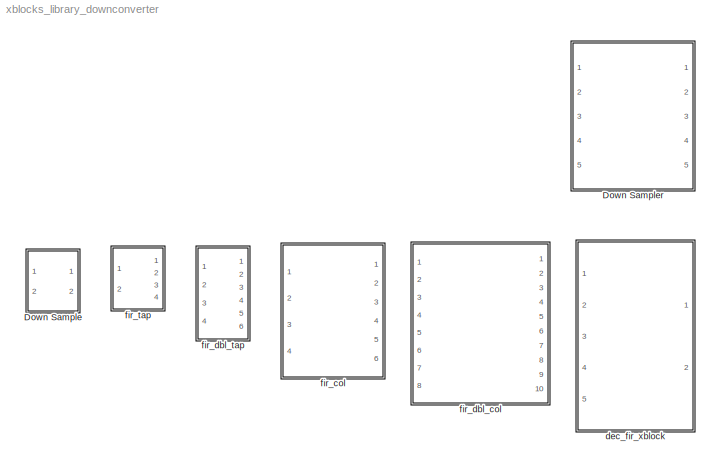
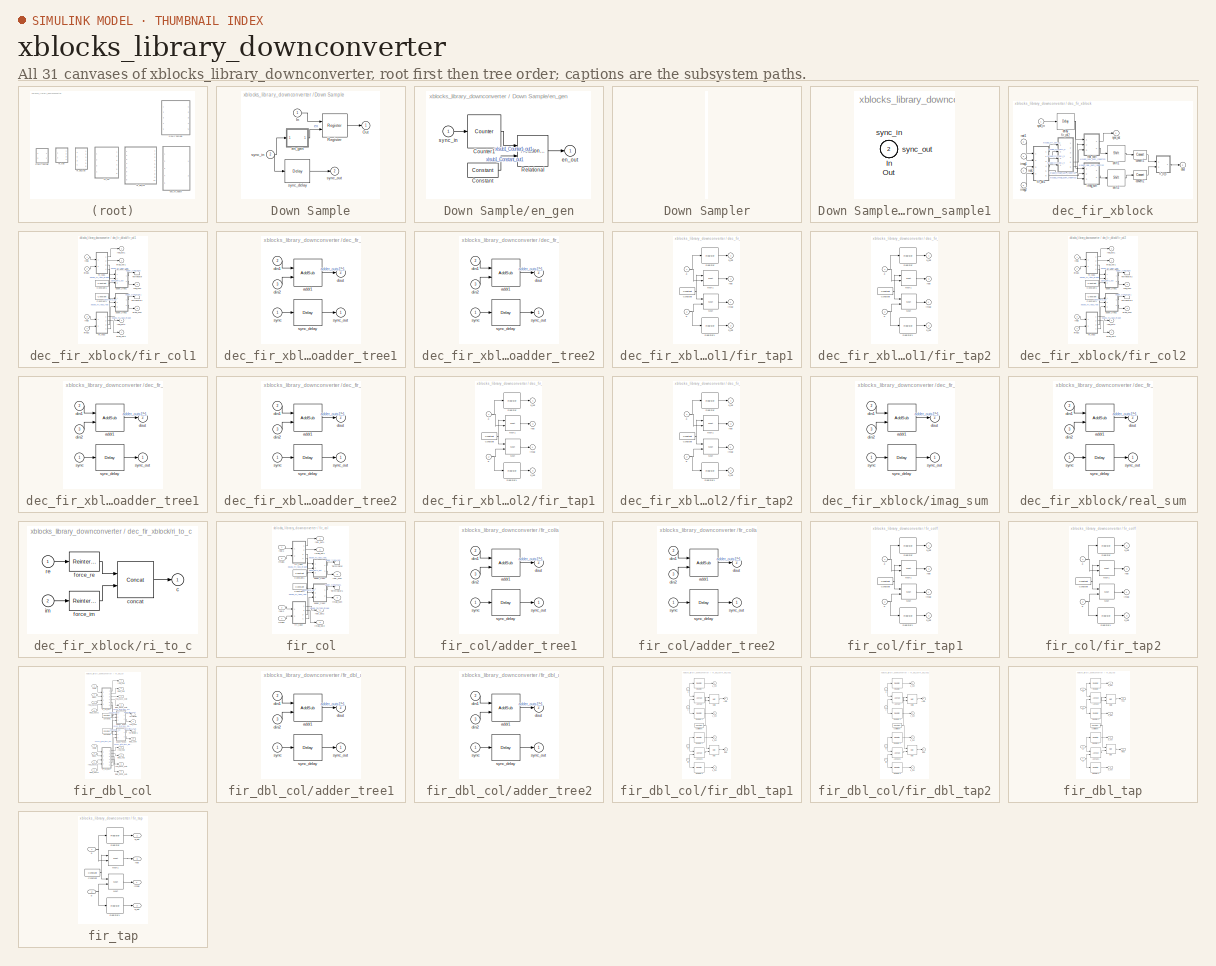
[diagram: thumbnail index - all 31 canvases of the model, root first then tree order]
MODEL xblocks_library_downconverter
KIND library
BLOCK [SubSystem] Down Sample
  AttributesFormatString = Rate change: 4\nclock(actualy/effective): 1/2
  FunctionWithSeparateData = off
  MaskCallbackString = ||||
  MaskDescription = Down Sample by using a periodically enabled register
  MaskEnableString = on,on,on,on,on
  MaskHideContents = off
  MaskIconFrame = on
  MaskIconOpaque = on
  MaskIconRotate = none
  MaskIconUnits = autoscale
  MaskInitialization = config.source=str2func('downsample_init_xblock');\nconfig.depend=get_dependlist('downsample');\nconfig.toplevel=gcb;\nset_param(gcb,'LinkStatus','inactive');\nxBlock(config, {config.toplevel,...\n    'dec_rate', dec_rate, ...\n    'input_clk_period', input_clk_period, ...\n    'input_period', input_period, ...\n    'xilinx', xilinx, ...\n    'ext_en', ext_en});
  MaskPortRotate = default
  MaskPromptString = Rate Change|Actual Input Clock Period|Effective Input Sampling Period|Use Xilinx Down Sample?|External enable port?
  MaskStyleString = edit,edit,edit,checkbox,checkbox
  MaskToolTipString = on,on,on,on,on
  MaskTunableValueString = on,on,on,on,on
  MaskType = Down Sample
  MaskValueString = 4|1|2|off|off
  MaskVariables = dec_rate=@1;input_clk_period=@2;input_period=@3;xilinx=@4;ext_en=&5;
  MaskVisibilityString = on,on,on,on,on
  MinAlgLoopOccurrences = off
  Opaque = off
  Ports = [2, 2]
  PropExecContextOutsideSubsystem = off
  RTWSystemCode = Auto
  RequestExecContextInheritance = off
  SID = 1221
  UserData = DataTag0
  UserDataPersistent = on
BLOCK [Inport] Down Sample/In
  IconDisplay = Port number
  SID = 1247
BLOCK [Outport] Down Sample/Out
  IconDisplay = Port number
  SID = 1249
BLOCK [Reference] Down Sample/Register  REF=xbsIndex_r4/Register
  Ports = [2, 1]
  SID = 1446
  SourceBlock = xbsIndex_r4/Register
  SourceType = Xilinx Register Block
  block_type = register
  dbl_ovrd = off
  en = on
  has_advanced_control = 0
  init = 0
  rst = off
  sg_icon_stat = 60,56,2,1,white,blue,0,6bd0930c,right,,[ ],[ ]
  sg_mask_display = fprintf('','COMMENT: begin icon graphics');\npatch([0 60 60 0 0 ],[0 0 56 56 0 ],[0.77 0.82 0.91 ]);\nplot([0 60 60 0 0 ],[0 0 56 56 0 ]);\npatch([12.2 23.76 31.76 39.76 47.76 31.76 20.2 12.2 ],[36.88 36.88 44.88 36.88 44.88 44.88 44.88 36.88 ],[1 1 1 ]);\npatch([20.2 31.76 23.76 12.2 20.2 ],[28.88 28.88 36.88 36.88 28.88 ],[0.931 0.946 0.973 ]);\npatch([12.2 23.76 31.76 20.2 12.2 ],[20.88 20.88 2...<+447ch>
  sggui_pos = -1,-1,-1,-1
  xl_area = [0,0,0,0,0,0,0]
  xl_use_area = off
BLOCK [SubSystem] Down Sample/en_gen
  AttributesFormatString = hold period: 8\nexplicit clk period:on , input clk period:1
  FunctionWithSeparateData = off
  MaskHideContents = off
  MinAlgLoopOccurrences = off
  Opaque = off
  Ports = [1, 1]
  PropExecContextOutsideSubsystem = off
  RTWSystemCode = Auto
  RequestExecContextInheritance = off
  SID = 1440
BLOCK [Reference] Down Sample/en_gen/Constant  REF=xbsIndex_r4/Constant
  Ports = [0, 1]
  SID = 1443
  SourceBlock = xbsIndex_r4/Constant
  SourceType = Xilinx Constant Block Block
  arith_type = Signed (2's comp)
  bin_pt = 14
  block_type = constant
  carry = CIN
  const = 0
  dbl_ovrd = off
  dsp48_infoedit = The use of this block for DSP48 instructions is deprecated.  Please use the Opmode block.
  equ = P=C
  exp_width = 8
  explicit_period = off
  frac_width = 24
  gui_display_data_type = Fixed-point
  has_advanced_control = 0
  inp1 = P
  inp2 = PCIN>>17
  n_bits = 16
  opr = +
  opselect = C
  period = 1
  preci_type = Single
  sg_icon_stat = 55,26,0,1,white,blue,0,bf4ddd8b,right,,[ ],[ ]
  sg_mask_display = fprintf('','COMMENT: begin icon graphics');\npatch([0 55 55 0 0 ],[0 0 26 26 0 ],[0.77 0.82 0.91 ]);\nplot([0 55 55 0 0 ],[0 0 26 26 0 ]);\npatch([20.325 24.66 27.66 30.66 33.66 27.66 23.325 20.325 ],[16.33 16.33 19.33 16.33 19.33 19.33 19.33 16.33 ],[1 1 1 ]);\npatch([23.325 27.66 24.66 20.325 23.325 ],[13.33 13.33 16.33 16.33 13.33 ],[0.931 0.946 0.973 ]);\npatch([20.325 24.66 27.66 23.325 20.32...<+333ch>  <repeated x5 — deduplicated; at blocks: Constant, Constant1, Constant2>
  sggui_pos = -1,-1,-1,-1
BLOCK [Reference] Down Sample/en_gen/Counter1  REF=xbsIndex_r4/Counter
  Ports = [1, 1]
  SID = 1444
  SourceBlock = xbsIndex_r4/Counter
  SourceType = Xilinx Counter Block
  arith_type = Unsigned
  bin_pt = 0
  block_type = counter
  cnt_by_val = 1
  cnt_to = 0
  cnt_type = Count Limited
  dbl_ovrd = off
  en = off
  explicit_period = on
  has_advanced_control = 0
  implementation = Fabric
  infoedit = Hardware notes: Free running counters are the least expensive in hardware.  A count limited counter is implemented by combining a counter with a comparator.
  load_pin = off
  n_bits = 3
  operation = Down
  period = 1
  rst = on
  sg_icon_stat = 60,60,1,1,white,blue,0,686b4038,right,,[ ],[ ]
  sg_mask_display = fprintf('','COMMENT: begin icon graphics');\npatch([0 60 60 0 0 ],[0 0 60 60 0 ],[0.77 0.82 0.91 ]);\nplot([0 60 60 0 0 ],[0 0 60 60 0 ]);\npatch([12.2 23.76 31.76 39.76 47.76 31.76 20.2 12.2 ],[38.88 38.88 46.88 38.88 46.88 46.88 46.88 38.88 ],[1 1 1 ]);\npatch([20.2 31.76 23.76 12.2 20.2 ],[30.88 30.88 38.88 38.88 30.88 ],[0.931 0.946 0.973 ]);\npatch([12.2 23.76 31.76 20.2 12.2 ],[22.88 22.88 3...<+395ch>
  sggui_pos = -1,-1,-1,-1
  start_count = 7
  use_behavioral_HDL = off
  xl_area = [0,0,0,0,0,0,0]
  xl_use_area = off
BLOCK [Reference] Down Sample/en_gen/Relational  REF=xbsIndex_r4/Relational
  Ports = [2, 1]
  SID = 1445
  SourceBlock = xbsIndex_r4/Relational
  SourceType = Xilinx Arithmetic Relational Operator Block
  block_type = relational
  dbl_ovrd = off
  en = off
  has_advanced_control = 0
  latency = 1
  mode = a=b
  sg_icon_stat = 55,56,2,1,white,blue,0,3618233f,right,,[ ],[ ]
  sg_mask_display = fprintf('','COMMENT: begin icon graphics');\npatch([0 55 55 0 0 ],[0 0 56 56 0 ],[0.77 0.82 0.91 ]);\nplot([0 55 55 0 0 ],[0 0 56 56 0 ]);\npatch([11.425 21.54 28.54 35.54 42.54 28.54 18.425 11.425 ],[35.77 35.77 42.77 35.77 42.77 42.77 42.77 35.77 ],[1 1 1 ]);\npatch([18.425 28.54 21.54 11.425 18.425 ],[28.77 28.77 35.77 35.77 28.77 ],[0.931 0.946 0.973 ]);\npatch([11.425 21.54 28.54 18.425 11.42...<+534ch>
  sggui_pos = -1,-1,-1,-1
  xl_area = [0,0,0,0,0,0,0]
  xl_use_area = off
BLOCK [Outport] Down Sample/en_gen/en_out
  IconDisplay = Port number
  SID = 1442
BLOCK [Inport] Down Sample/en_gen/sync_in
  IconDisplay = Port number
  SID = 1441
BLOCK [Reference] Down Sample/sync_delay  REF=xbsIndex_r4/Delay
  Ports = [1, 1]
  SID = 1447
  SourceBlock = xbsIndex_r4/Delay
  SourceType = Xilinx Delay Block
  block_type = delay
  dbl_ovrd = off
  en = off
  has_advanced_control = 0
  infoedit = Hardware notes: A delay line is a chain, each link of which is an SRL16 followed by a flip-flop.
  infoeditControl = Selection of Reset will increase slice count due to use of real FFs and instead of SRLs
  latency = 1
  reg_retiming = off
  rst = off
  sg_icon_stat = 60,56,1,1,white,blue,0,07b98262,right,,[ ],[ ]
  sg_mask_display = fprintf('','COMMENT: begin icon graphics');\npatch([0 60 60 0 0 ],[0 0 56 56 0 ],[0.77 0.82 0.91 ]);\nplot([0 60 60 0 0 ],[0 0 56 56 0 ]);\npatch([12.2 23.76 31.76 39.76 47.76 31.76 20.2 12.2 ],[36.88 36.88 44.88 36.88 44.88 44.88 44.88 36.88 ],[1 1 1 ]);\npatch([20.2 31.76 23.76 12.2 20.2 ],[28.88 28.88 36.88 36.88 28.88 ],[0.931 0.946 0.973 ]);\npatch([12.2 23.76 31.76 20.2 12.2 ],[20.88 20.88 2...<+320ch>  <repeated x9 — deduplicated; at blocks: sync_delay, delay1, delay>
  sggui_pos = -1,-1,-1,-1
  xl_area = [0,0,0,0,0,0,0]
  xl_use_area = off
BLOCK [Inport] Down Sample/sync_in
  IconDisplay = Port number
  Port = 2
  SID = 1406
BLOCK [Outport] Down Sample/sync_out
  IconDisplay = Port number
  Port = 2
  SID = 1407
BLOCK [SubSystem] Down Sampler
  AttributesFormatString = Decimation Rate = 3
  FunctionWithSeparateData = off
  MaskCallbackString = |||
  MaskDescription = Parallely downconvert.
  MaskEnableString = on,on,on,on
  MaskHideContents = off
  MaskIconFrame = on
  MaskIconOpaque = on
  MaskIconRotate = none
  MaskIconUnits = autoscale
  MaskInitialization = config.source=str2func('parallel_downsampler_init_xblock');\nconfig.depend=get_dependlist('parallel_downsampler');\nconfig.toplevel=gcb;\nset_param(gcb,'LinkStatus','inactive');\nxBlock(config, {config.toplevel,...\n    'n_inputs', n_inputs, ...\n    'dec_rate', dec_rate, ...\n    'xilinx', xilinx, ...\n    'input_clk_rate', input_clk_rate});
  MaskPortRotate = default
  MaskPromptString = number of inputs|Decimation rate|Use Xilinx version of Down Sample?|Input Clock Rate
  MaskStyleString = edit,edit,checkbox,edit
  MaskToolTipString = on,on,on,on
  MaskTunableValueString = on,on,on,on
  MaskType = Parallel Downconverter (xBlock)
  MaskValueString = 4|3|off|0
  MaskVariables = n_inputs=@1;dec_rate=@2;xilinx=@3;input_clk_rate=@4;
  MaskVisibilityString = on,on,on,on
  MinAlgLoopOccurrences = off
  Opaque = off
  Ports = [5, 5]
  PropExecContextOutsideSubsystem = off
  RTWSystemCode = Auto
  RequestExecContextInheritance = off
  SID = 660
  UserData = DataTag1
  UserDataPersistent = on
BLOCK [SubSystem] Down Sampler/Down_sample1
  FunctionWithSeparateData = off
  MaskHideContents = off
  MinAlgLoopOccurrences = off
  Opaque = off
  Ports = [2, 2]
  PropExecContextOutsideSubsystem = off
  RTWSystemCode = Auto
  RequestExecContextInheritance = off
  SID = 1336
BLOCK [Inport] Down Sampler/Down_sample1/In
  IconDisplay = Port number
  SID = 1337
BLOCK [Outport] Down Sampler/Down_sample1/Out
  IconDisplay = Port number
  SID = 1339
BLOCK [Inport] Down Sampler/Down_sample1/sync_in
  IconDisplay = Port number
  Port = 2
  SID = 1338
BLOCK [Outport] Down Sampler/Down_sample1/sync_out
  IconDisplay = Port number
  Port = 2
  SID = 1340
BLOCK [Inport] Down Sampler/In1
  IconDisplay = Port number
  SID = 662
BLOCK [Inport] Down Sampler/In2
  IconDisplay = Port number
  Port = 2
  SID = 663
BLOCK [Inport] Down Sampler/In3
  IconDisplay = Port number
  Port = 3
  SID = 664
BLOCK [Inport] Down Sampler/In4
  IconDisplay = Port number
  Port = 4
  SID = 665
BLOCK [Outport] Down Sampler/Out1
  IconDisplay = Port number
  SID = 678
BLOCK [Outport] Down Sampler/Out2
  IconDisplay = Port number
  Port = 2
  SID = 679
BLOCK [Outport] Down Sampler/Out3
  IconDisplay = Port number
  Port = 3
  SID = 680
BLOCK [Outport] Down Sampler/Out4
  IconDisplay = Port number
  Port = 4
  SID = 681
BLOCK [Reference] Down Sampler/delay1  REF=xbsIndex_r4/Delay
  Ports = [1, 1]
  SID = 1335
  SourceBlock = xbsIndex_r4/Delay
  SourceType = Xilinx Delay Block
  block_type = delay
  dbl_ovrd = off
  en = off
  has_advanced_control = 0
  infoedit = Hardware notes: A delay line is a chain, each link of which is an SRL16 followed by a flip-flop.
  infoeditControl = Selection of Reset will increase slice count due to use of real FFs and instead of SRLs
  latency = 2
  reg_retiming = off
  rst = off
  sg_icon_stat = 60,56,1,1,white,blue,0,85ce9542,right,,[ ],[ ]
  sggui_pos = -1,-1,-1,-1
  xl_area = [0,0,0,0,0,0,0]
  xl_use_area = off
BLOCK [Inport] Down Sampler/sync_in
  IconDisplay = Port number
  Port = 5
  SID = 661
BLOCK [Outport] Down Sampler/sync_out
  IconDisplay = Port number
  Port = 5
  SID = 677
BLOCK [SubSystem] dec_fir_xblock
  AttributesFormatString = 4 taps\n4_3 r/i
  FunctionWithSeparateData = off
  MaskCallbackString = coeff = (get_param(gcb,'coeff'));\nn_inputs = (get_param(gcb,'n_inputs'));\nif ~isempty(coeff) && ~isempty(n_inputs)\n    coeff = eval(coeff);\n    n_inputs = eval(n_inputs);\n    coeff_round = round(coeff*1e16)*1e-16;\n    if mod(length(coeff)/n_inputs,1) ~=0\n        errordlg('The number of coefficients must be integer multiples of the number of inputs');\n        set_param(gcb,'n_inputs','');\n...<+1202ch>
  MaskDescription = FIR filter which can handle multiple time samples in parallel and decimates down to 1 time sample.  If coefficients are symmetric, will automatically fold before multiplying.\n(xBlock version)
  MaskEnableString = on,on,on,on,on,on,on,on,on
  MaskHideContents = off
  MaskIconFrame = on
  MaskIconOpaque = on
  MaskIconRotate = none
  MaskIconUnits = autoscale
  MaskInitialization = config.source=str2func('dec_fir_init_xblock');\nconfig.toplevel=gcb;\nconfig.depend = get_dependlist('dec_fir');\nset_param(gcb,'LinkStatus','inactive');\nxBlock(config, ...\n        {config.toplevel,n_inputs,coeff,n_bits,quantization,add_latency,...\n         mult_latency, coeff_bit_width,coeff_bin_pt,adder_tree_hdl});
  MaskPortRotate = default
  MaskPromptString = Number of Parallel Streams|Coefficients|Bit Width Out|Quantization Behavior|Add Latency|Mult Latency|Coefficient bit width|Coefficient binary point|Implement first stage of adder trees after multiplication as behavioural HDL
  MaskStyleString = edit,edit,edit,popup(Truncate|Round  (unbiased: +/- Inf)|Round  (unbiased: Even Values)),edit,edit,edit,edit,checkbox
  MaskToolTipString = on,on,on,on,on,on,on,on,on
  MaskTunableValueString = on,on,on,on,on,on,on,on,on
  MaskType = dec_fir (xBlock)
  MaskValueString = 2|[1 2 3 4]|4|Truncate|1|2|25|24|off
  MaskVariables = n_inputs=@1;coeff=@2;n_bits=@3;quantization=&4;add_latency=@5;mult_latency=@6;coeff_bit_width=@7;coeff_bin_pt=@8;adder_tree_hdl=&9;
  MaskVisibilityString = on,on,on,on,on,on,on,on,on
  MinAlgLoopOccurrences = off
  Opaque = off
  Ports = [5, 2]
  PropExecContextOutsideSubsystem = off
  RTWSystemCode = Auto
  RequestExecContextInheritance = off
  SID = 17
  UserData = DataTag2
  UserDataPersistent = on
BLOCK [Reference] dec_fir_xblock/convert1  REF=xbsIndex_r4/Convert
  Ports = [1, 1]
  SID = 1197
  SourceBlock = xbsIndex_r4/Convert
  SourceType = Xilinx Type Converter Block
  arith_type = Signed  (2's comp)
  bin_pt = 3
  block_type = convert
  dbl_ovrd = off
  en = off
  exp_bits = 8
  float_type = Single
  fraction_bits = 24
  gui_display_data_type = Fixed-point
  has_advanced_control = 0
  infoedit = Hardware notes: rounding and saturating require hardware resources; truncating and wrapping do not.
  latency = 1
  n_bits = 4
  overflow = Wrap
  pipeline = off
  quantization = Truncate
  sg_icon_stat = 45,30,1,1,white,blue,0,0c6bad53,right,,[ ],[ ]
  sg_mask_display = fprintf('','COMMENT: begin icon graphics');\npatch([0 45 45 0 0 ],[0 0 30 30 0 ],[0.77 0.82 0.91 ]);\nplot([0 45 45 0 0 ],[0 0 30 30 0 ]);\npatch([13.1 18.88 22.88 26.88 30.88 22.88 17.1 13.1 ],[19.44 19.44 23.44 19.44 23.44 23.44 23.44 19.44 ],[1 1 1 ]);\npatch([17.1 22.88 18.88 13.1 17.1 ],[15.44 15.44 19.44 19.44 15.44 ],[0.931 0.946 0.973 ]);\npatch([13.1 18.88 22.88 17.1 13.1 ],[11.44 11.44 1...<+402ch>
  sggui_pos = -1,-1,-1,-1
  xl_area = [0,0,0,0,0,0,0]
  xl_use_area = off
BLOCK [Reference] dec_fir_xblock/convert2  REF=xbsIndex_r4/Convert
  Ports = [1, 1]
  SID = 1198
  SourceBlock = xbsIndex_r4/Convert
  SourceType = Xilinx Type Converter Block
  arith_type = Signed  (2's comp)
  bin_pt = 3
  block_type = convert
  dbl_ovrd = off
  en = off
  exp_bits = 8
  float_type = Single
  fraction_bits = 24
  gui_display_data_type = Fixed-point
  has_advanced_control = 0
  infoedit = Hardware notes: rounding and saturating require hardware resources; truncating and wrapping do not.
  latency = 1
  n_bits = 4
  overflow = Wrap
  pipeline = off
  quantization = Truncate
  sg_icon_stat = 45,32,1,1,white,blue,0,0c6bad53,right,,[ ],[ ]
  sg_mask_display = fprintf('','COMMENT: begin icon graphics');\npatch([0 45 45 0 0 ],[0 0 32 32 0 ],[0.77 0.82 0.91 ]);\nplot([0 45 45 0 0 ],[0 0 32 32 0 ]);\npatch([13.1 18.88 22.88 26.88 30.88 22.88 17.1 13.1 ],[20.44 20.44 24.44 20.44 24.44 24.44 24.44 20.44 ],[1 1 1 ]);\npatch([17.1 22.88 18.88 13.1 17.1 ],[16.44 16.44 20.44 20.44 16.44 ],[0.931 0.946 0.973 ]);\npatch([13.1 18.88 22.88 17.1 13.1 ],[12.44 12.44 1...<+402ch>
  sggui_pos = -1,-1,-1,-1
  xl_area = [0,0,0,0,0,0,0]
  xl_use_area = off
BLOCK [Reference] dec_fir_xblock/delay  REF=xbsIndex_r4/Delay
  Ports = [1, 1]
  SID = 1070
  SourceBlock = xbsIndex_r4/Delay
  SourceType = Xilinx Delay Block
  block_type = delay
  dbl_ovrd = off
  en = off
  has_advanced_control = 0
  infoedit = Hardware notes: A delay line is a chain, each link of which is an SRL16 followed by a flip-flop.
  infoeditControl = Selection of Reset will increase slice count due to use of real FFs and instead of SRLs
  latency = 4
  reg_retiming = off
  rst = off
  sg_icon_stat = 60,56,1,1,white,blue,0,d390c2d8,right,,[ ],[ ]
  sggui_pos = -1,-1,-1,-1
  xl_area = [0,0,0,0,0,0,0]
  xl_use_area = off
BLOCK [Outport] dec_fir_xblock/dout
  IconDisplay = Port number
  Port = 2
  SID = 162
BLOCK [SubSystem] dec_fir_xblock/fir_col1
  FunctionWithSeparateData = off
  MaskHideContents = off
  MinAlgLoopOccurrences = off
  Opaque = off
  Ports = [4, 6]
  PropExecContextOutsideSubsystem = off
  RTWSystemCode = Auto
  RequestExecContextInheritance = off
  SID = 1071
BLOCK [Reference] dec_fir_xblock/fir_col1/Constant1  REF=xbsIndex_r4/Constant
  Ports = [0, 1]
  SID = 1106
  SourceBlock = xbsIndex_r4/Constant
  SourceType = Xilinx Constant Block Block
  arith_type = Signed (2's comp)
  bin_pt = 14
  block_type = constant
  carry = CIN
  const = 1
  dbl_ovrd = off
  dsp48_infoedit = The use of this block for DSP48 instructions is deprecated.  Please use the Opmode block.
  equ = P=C
  exp_width = 8
  explicit_period = on
  frac_width = 24
  gui_display_data_type = Fixed-point
  has_advanced_control = 0
  inp1 = P
  inp2 = PCIN>>17
  n_bits = 16
  opr = +
  opselect = C
  period = 1
  preci_type = Single
  sg_icon_stat = 55,26,0,1,white,blue,0,1c72b5be,right,,[ ],[ ]
  sggui_pos = -1,-1,-1,-1
BLOCK [Reference] dec_fir_xblock/fir_col1/Constant2  REF=xbsIndex_r4/Constant
  Ports = [0, 1]
  SID = 1107
  SourceBlock = xbsIndex_r4/Constant
  SourceType = Xilinx Constant Block Block
  arith_type = Signed (2's comp)
  bin_pt = 14
  block_type = constant
  carry = CIN
  const = 1
  dbl_ovrd = off
  dsp48_infoedit = The use of this block for DSP48 instructions is deprecated.  Please use the Opmode block.
  equ = P=C
  exp_width = 8
  explicit_period = on
  frac_width = 24
  gui_display_data_type = Fixed-point
  has_advanced_control = 0
  inp1 = P
  inp2 = PCIN>>17
  n_bits = 16
  opr = +
  opselect = C
  period = 1
  preci_type = Single
  sg_icon_stat = 55,26,0,1,white,blue,0,1c72b5be,right,,[ ],[ ]
  sggui_pos = -1,-1,-1,-1
BLOCK [Terminator] dec_fir_xblock/fir_col1/Terminator
  SID = 1124
BLOCK [Terminator] dec_fir_xblock/fir_col1/Terminator1
  SID = 1125
BLOCK [SubSystem] dec_fir_xblock/fir_col1/adder_tree1
  AttributesFormatString = latency 2
  FunctionWithSeparateData = off
  MaskHideContents = off
  MinAlgLoopOccurrences = off
  Opaque = off
  Ports = [3, 2]
  PropExecContextOutsideSubsystem = off
  RTWSystemCode = Auto
  RequestExecContextInheritance = off
  SID = 1108
BLOCK [Reference] dec_fir_xblock/fir_col1/adder_tree1/addr1  REF=xbsIndex_r4/AddSub
  Ports = [2, 1]
  SID = 1115
  SourceBlock = xbsIndex_r4/AddSub
  SourceType = Xilinx Adder/Subtracter Block
  arith_type = Unsigned
  bin_pt = 14
  block_type = addsub
  dbl_ovrd = off
  en = off
  has_advanced_control = 0
  hw_selection = Fabric
  latency = 2
  mode = Addition
  n_bits = 16
  overflow = Wrap
  pipelined = on
  precision = Full
  quantization = Truncate
  sg_icon_stat = 60,58,2,1,white,blue,0,dcac4ee3,right,,[ ],[ ]
  sg_mask_display = fprintf('','COMMENT: begin icon graphics');\npatch([0 60 60 0 0 ],[0 0 58 58 0 ],[0.77 0.82 0.91 ]);\nplot([0 60 60 0 0 ],[0 0 58 58 0 ]);\npatch([12.2 23.76 31.76 39.76 47.76 31.76 20.2 12.2 ],[37.88 37.88 45.88 37.88 45.88 45.88 45.88 37.88 ],[1 1 1 ]);\npatch([20.2 31.76 23.76 12.2 20.2 ],[29.88 29.88 37.88 37.88 29.88 ],[0.931 0.946 0.973 ]);\npatch([12.2 23.76 31.76 20.2 12.2 ],[21.88 21.88 2...<+538ch>  <repeated x6 — deduplicated; at blocks: addr1>
  sggui_pos = -1,-1,-1,-1
  use_behavioral_HDL = off
  use_carryin = off
  use_carryout = off
  use_rpm = on
  xl_area = [0,0,0,0,0,0,0]
  xl_use_area = off
BLOCK [Inport] dec_fir_xblock/fir_col1/adder_tree1/din1
  IconDisplay = Port number
  Port = 2
  SID = 1111
BLOCK [Inport] dec_fir_xblock/fir_col1/adder_tree1/din2
  IconDisplay = Port number
  Port = 3
  SID = 1112
BLOCK [Outport] dec_fir_xblock/fir_col1/adder_tree1/dout
  IconDisplay = Port number
  Port = 2
  SID = 1113
BLOCK [Inport] dec_fir_xblock/fir_col1/adder_tree1/sync
  IconDisplay = Port number
  SID = 1109
BLOCK [Reference] dec_fir_xblock/fir_col1/adder_tree1/sync_delay  REF=xbsIndex_r4/Delay
  Ports = [1, 1]
  SID = 1114
  SourceBlock = xbsIndex_r4/Delay
  SourceType = Xilinx Delay Block
  block_type = delay
  dbl_ovrd = off
  en = off
  has_advanced_control = 0
  infoedit = Hardware notes: A delay line is a chain, each link of which is an SRL16 followed by a flip-flop.
  infoeditControl = Selection of Reset will increase slice count due to use of real FFs and instead of SRLs
  latency = 2
  reg_retiming = on
  rst = off
  sg_icon_stat = 60,56,1,1,white,blue,0,85ce9542,right,,[ ],[ ]
  sggui_pos = -1,-1,-1,-1
  xl_area = [0,0,0,0,0,0,0]
  xl_use_area = off
BLOCK [Outport] dec_fir_xblock/fir_col1/adder_tree1/sync_out
  IconDisplay = Port number
  SID = 1110
BLOCK [SubSystem] dec_fir_xblock/fir_col1/adder_tree2
  AttributesFormatString = latency 2
  FunctionWithSeparateData = off
  MaskHideContents = off
  MinAlgLoopOccurrences = off
  Opaque = off
  Ports = [3, 2]
  PropExecContextOutsideSubsystem = off
  RTWSystemCode = Auto
  RequestExecContextInheritance = off
  SID = 1116
BLOCK [Reference] dec_fir_xblock/fir_col1/adder_tree2/addr1  REF=xbsIndex_r4/AddSub
  Ports = [2, 1]
  SID = 1123
  SourceBlock = xbsIndex_r4/AddSub
  SourceType = Xilinx Adder/Subtracter Block
  arith_type = Unsigned
  bin_pt = 14
  block_type = addsub
  dbl_ovrd = off
  en = off
  has_advanced_control = 0
  hw_selection = Fabric
  latency = 2
  mode = Addition
  n_bits = 16
  overflow = Wrap
  pipelined = on
  precision = Full
  quantization = Truncate
  sg_icon_stat = 60,58,2,1,white,blue,0,dcac4ee3,right,,[ ],[ ]
  sggui_pos = -1,-1,-1,-1
  use_behavioral_HDL = off
  use_carryin = off
  use_carryout = off
  use_rpm = on
  xl_area = [0,0,0,0,0,0,0]
  xl_use_area = off
BLOCK [Inport] dec_fir_xblock/fir_col1/adder_tree2/din1
  IconDisplay = Port number
  Port = 2
  SID = 1119
BLOCK [Inport] dec_fir_xblock/fir_col1/adder_tree2/din2
  IconDisplay = Port number
  Port = 3
  SID = 1120
BLOCK [Outport] dec_fir_xblock/fir_col1/adder_tree2/dout
  IconDisplay = Port number
  Port = 2
  SID = 1121
BLOCK [Inport] dec_fir_xblock/fir_col1/adder_tree2/sync
  IconDisplay = Port number
  SID = 1117
BLOCK [Reference] dec_fir_xblock/fir_col1/adder_tree2/sync_delay  REF=xbsIndex_r4/Delay
  Ports = [1, 1]
  SID = 1122
  SourceBlock = xbsIndex_r4/Delay
  SourceType = Xilinx Delay Block
  block_type = delay
  dbl_ovrd = off
  en = off
  has_advanced_control = 0
  infoedit = Hardware notes: A delay line is a chain, each link of which is an SRL16 followed by a flip-flop.
  infoeditControl = Selection of Reset will increase slice count due to use of real FFs and instead of SRLs
  latency = 2
  reg_retiming = on
  rst = off
  sg_icon_stat = 60,56,1,1,white,blue,0,85ce9542,right,,[ ],[ ]
  sggui_pos = -1,-1,-1,-1
  xl_area = [0,0,0,0,0,0,0]
  xl_use_area = off
BLOCK [Outport] dec_fir_xblock/fir_col1/adder_tree2/sync_out
  IconDisplay = Port number
  SID = 1118
BLOCK [SubSystem] dec_fir_xblock/fir_col1/fir_tap1
  FunctionWithSeparateData = off
  MaskHideContents = off
  MinAlgLoopOccurrences = off
  Opaque = off
  Ports = [2, 4]
  PropExecContextOutsideSubsystem = off
  RTWSystemCode = Auto
  RequestExecContextInheritance = off
  SID = 1082
BLOCK [Reference] dec_fir_xblock/fir_col1/fir_tap1/Constant  REF=xbsIndex_r4/Constant
  Ports = [0, 1]
  SID = 1089
  SourceBlock = xbsIndex_r4/Constant
  SourceType = Xilinx Constant Block Block
  arith_type = Signed (2's comp)
  bin_pt = 24
  block_type = constant
  carry = CIN
  const = 2
  dbl_ovrd = off
  dsp48_infoedit = The use of this block for DSP48 instructions is deprecated.  Please use the Opmode block.
  equ = P=C
  exp_width = 8
  explicit_period = on
  frac_width = 24
  gui_display_data_type = Fixed-point
  has_advanced_control = 0
  inp1 = P
  inp2 = PCIN>>17
  n_bits = 25
  opr = +
  opselect = C
  period = 1
  preci_type = Single
  sg_icon_stat = 55,26,0,1,white,blue,0,524c6e09,right,,[ ],[ ]
  sg_mask_display = fprintf('','COMMENT: begin icon graphics');\npatch([0 55 55 0 0 ],[0 0 26 26 0 ],[0.77 0.82 0.91 ]);\nplot([0 55 55 0 0 ],[0 0 26 26 0 ]);\npatch([20.325 24.66 27.66 30.66 33.66 27.66 23.325 20.325 ],[16.33 16.33 19.33 16.33 19.33 19.33 19.33 16.33 ],[1 1 1 ]);\npatch([23.325 27.66 24.66 20.325 23.325 ],[13.33 13.33 16.33 16.33 13.33 ],[0.931 0.946 0.973 ]);\npatch([20.325 24.66 27.66 23.325 20.32...<+351ch>  <repeated x5 — deduplicated; at blocks: Constant>
  sggui_pos = -1,-1,-1,-1
BLOCK [Reference] dec_fir_xblock/fir_col1/fir_tap1/Mult  REF=xbsIndex_r4/Mult
  Ports = [2, 1]
  SID = 1090
  SourceBlock = xbsIndex_r4/Mult
  SourceType = Xilinx Multiplier Block
  arith_type = Signed  (2's comp)
  bin_pt = 17
  block_type = mult
  dbl_ovrd = off
  en = off
  has_advanced_control = 0
  infoedit = Hardware notes: To check for the optimum internal pipeline stages of the dedicated multiplier you must select 'Test for optimum pipelining'.<br><br>Optimization Goal: For implementation into device fabric (LUTs), the Speed or Area optimization will take effect only if it's supported by IP for the particular device family. Otherwise, the results will be identical regardless of the selection.  <repeated x20 — deduplicated; at blocks: Mult, Mult1>
  latency = 1
  n_bits = 18
  opt = Speed
  optimum_pipeline = off
  overflow = Wrap
  pipeline = on
  placement_style = Rectangular shape
  precision = Full
  quantization = Truncate
  sg_icon_stat = 55,55,2,1,white,blue,0,82c891c1,right,,[ ],[ ]
  sg_mask_display = fprintf('','COMMENT: begin icon graphics');\npatch([0 55 55 0 0 ],[0 0 55 55 0 ],[0.77 0.82 0.91 ]);\nplot([0 55 55 0 0 ],[0 0 55 55 0 ]);\npatch([11.425 21.54 28.54 35.54 42.54 28.54 18.425 11.425 ],[34.77 34.77 41.77 34.77 41.77 41.77 41.77 34.77 ],[1 1 1 ]);\npatch([18.425 28.54 21.54 11.425 18.425 ],[27.77 27.77 34.77 34.77 27.77 ],[0.931 0.946 0.973 ]);\npatch([11.425 21.54 28.54 18.425 11.42...<+540ch>  <repeated x10 — deduplicated; at blocks: Mult, Mult1>
  sggui_pos = -1,-1,-1,-1
  use_behavioral_HDL = on
  use_embedded = on
  use_rpm = off
  xl_area = [0,0,0,0,0,0,0]
  xl_use_area = off
BLOCK [Reference] dec_fir_xblock/fir_col1/fir_tap1/Mult1  REF=xbsIndex_r4/Mult
  Ports = [2, 1]
  SID = 1091
  SourceBlock = xbsIndex_r4/Mult
  SourceType = Xilinx Multiplier Block
  arith_type = Signed  (2's comp)
  bin_pt = 17
  block_type = mult
  dbl_ovrd = off
  en = off
  has_advanced_control = 0
  latency = 1
  n_bits = 18
  opt = Speed
  optimum_pipeline = off
  overflow = Wrap
  pipeline = on
  placement_style = Rectangular shape
  precision = Full
  quantization = Truncate
  sg_icon_stat = 55,55,2,1,white,blue,0,82c891c1,right,,[ ],[ ]
  sggui_pos = -1,-1,-1,-1
  use_behavioral_HDL = on
  use_embedded = on
  use_rpm = off
  xl_area = [0,0,0,0,0,0,0]
  xl_use_area = off
BLOCK [Reference] dec_fir_xblock/fir_col1/fir_tap1/Register  REF=xbsIndex_r4/Register
  Ports = [1, 1]
  SID = 1092
  SourceBlock = xbsIndex_r4/Register
  SourceType = Xilinx Register Block
  block_type = register
  dbl_ovrd = off
  en = off
  has_advanced_control = 0
  init = 0
  rst = off
  sg_icon_stat = 60,56,1,1,white,blue,0,c80657c5,right,,[ ],[ ]
  sg_mask_display = fprintf('','COMMENT: begin icon graphics');\npatch([0 60 60 0 0 ],[0 0 56 56 0 ],[0.77 0.82 0.91 ]);\nplot([0 60 60 0 0 ],[0 0 56 56 0 ]);\npatch([12.2 23.76 31.76 39.76 47.76 31.76 20.2 12.2 ],[36.88 36.88 44.88 36.88 44.88 44.88 44.88 36.88 ],[1 1 1 ]);\npatch([20.2 31.76 23.76 12.2 20.2 ],[28.88 28.88 36.88 36.88 28.88 ],[0.931 0.946 0.973 ]);\npatch([12.2 23.76 31.76 20.2 12.2 ],[20.88 20.88 2...<+403ch>  <repeated x10 — deduplicated; at blocks: Register, Register1>
  sggui_pos = -1,-1,-1,-1
  xl_area = [0,0,0,0,0,0,0]
  xl_use_area = off
BLOCK [Reference] dec_fir_xblock/fir_col1/fir_tap1/Register1  REF=xbsIndex_r4/Register
  Ports = [1, 1]
  SID = 1093
  SourceBlock = xbsIndex_r4/Register
  SourceType = Xilinx Register Block
  block_type = register
  dbl_ovrd = off
  en = off
  has_advanced_control = 0
  init = 0
  rst = off
  sg_icon_stat = 60,56,1,1,white,blue,0,c80657c5,right,,[ ],[ ]
  sggui_pos = -1,-1,-1,-1
  xl_area = [0,0,0,0,0,0,0]
  xl_use_area = off
BLOCK [Inport] dec_fir_xblock/fir_col1/fir_tap1/a
  IconDisplay = Port number
  SID = 1083
BLOCK [Outport] dec_fir_xblock/fir_col1/fir_tap1/a_out
  IconDisplay = Port number
  SID = 1085
BLOCK [Inport] dec_fir_xblock/fir_col1/fir_tap1/b
  IconDisplay = Port number
  Port = 2
  SID = 1084
BLOCK [Outport] dec_fir_xblock/fir_col1/fir_tap1/b_out
  IconDisplay = Port number
  Port = 2
  SID = 1086
BLOCK [Outport] dec_fir_xblock/fir_col1/fir_tap1/imag
  IconDisplay = Port number
  Port = 4
  SID = 1088
BLOCK [Outport] dec_fir_xblock/fir_col1/fir_tap1/real
  IconDisplay = Port number
  Port = 3
  SID = 1087
BLOCK [SubSystem] dec_fir_xblock/fir_col1/fir_tap2
  FunctionWithSeparateData = off
  MaskHideContents = off
  MinAlgLoopOccurrences = off
  Opaque = off
  Ports = [2, 4]
  PropExecContextOutsideSubsystem = off
  RTWSystemCode = Auto
  RequestExecContextInheritance = off
  SID = 1094
BLOCK [Reference] dec_fir_xblock/fir_col1/fir_tap2/Constant  REF=xbsIndex_r4/Constant
  Ports = [0, 1]
  SID = 1101
  SourceBlock = xbsIndex_r4/Constant
  SourceType = Xilinx Constant Block Block
  arith_type = Signed (2's comp)
  bin_pt = 24
  block_type = constant
  carry = CIN
  const = 1
  dbl_ovrd = off
  dsp48_infoedit = The use of this block for DSP48 instructions is deprecated.  Please use the Opmode block.
  equ = P=C
  exp_width = 8
  explicit_period = on
  frac_width = 24
  gui_display_data_type = Fixed-point
  has_advanced_control = 0
  inp1 = P
  inp2 = PCIN>>17
  n_bits = 25
  opr = +
  opselect = C
  period = 1
  preci_type = Single
  sg_icon_stat = 55,26,0,1,white,blue,0,524c6e09,right,,[ ],[ ]
  sggui_pos = -1,-1,-1,-1
BLOCK [Reference] dec_fir_xblock/fir_col1/fir_tap2/Mult  REF=xbsIndex_r4/Mult
  Ports = [2, 1]
  SID = 1102
  SourceBlock = xbsIndex_r4/Mult
  SourceType = Xilinx Multiplier Block
  arith_type = Signed  (2's comp)
  bin_pt = 17
  block_type = mult
  dbl_ovrd = off
  en = off
  has_advanced_control = 0
  latency = 1
  n_bits = 18
  opt = Speed
  optimum_pipeline = off
  overflow = Wrap
  pipeline = on
  placement_style = Rectangular shape
  precision = Full
  quantization = Truncate
  sg_icon_stat = 55,55,2,1,white,blue,0,82c891c1,right,,[ ],[ ]
  sggui_pos = -1,-1,-1,-1
  use_behavioral_HDL = on
  use_embedded = on
  use_rpm = off
  xl_area = [0,0,0,0,0,0,0]
  xl_use_area = off
BLOCK [Reference] dec_fir_xblock/fir_col1/fir_tap2/Mult1  REF=xbsIndex_r4/Mult
  Ports = [2, 1]
  SID = 1103
  SourceBlock = xbsIndex_r4/Mult
  SourceType = Xilinx Multiplier Block
  arith_type = Signed  (2's comp)
  bin_pt = 17
  block_type = mult
  dbl_ovrd = off
  en = off
  has_advanced_control = 0
  latency = 1
  n_bits = 18
  opt = Speed
  optimum_pipeline = off
  overflow = Wrap
  pipeline = on
  placement_style = Rectangular shape
  precision = Full
  quantization = Truncate
  sg_icon_stat = 55,55,2,1,white,blue,0,82c891c1,right,,[ ],[ ]
  sggui_pos = -1,-1,-1,-1
  use_behavioral_HDL = on
  use_embedded = on
  use_rpm = off
  xl_area = [0,0,0,0,0,0,0]
  xl_use_area = off
BLOCK [Reference] dec_fir_xblock/fir_col1/fir_tap2/Register  REF=xbsIndex_r4/Register
  Ports = [1, 1]
  SID = 1104
  SourceBlock = xbsIndex_r4/Register
  SourceType = Xilinx Register Block
  block_type = register
  dbl_ovrd = off
  en = off
  has_advanced_control = 0
  init = 0
  rst = off
  sg_icon_stat = 60,56,1,1,white,blue,0,c80657c5,right,,[ ],[ ]
  sggui_pos = -1,-1,-1,-1
  xl_area = [0,0,0,0,0,0,0]
  xl_use_area = off
BLOCK [Reference] dec_fir_xblock/fir_col1/fir_tap2/Register1  REF=xbsIndex_r4/Register
  Ports = [1, 1]
  SID = 1105
  SourceBlock = xbsIndex_r4/Register
  SourceType = Xilinx Register Block
  block_type = register
  dbl_ovrd = off
  en = off
  has_advanced_control = 0
  init = 0
  rst = off
  sg_icon_stat = 60,56,1,1,white,blue,0,c80657c5,right,,[ ],[ ]
  sggui_pos = -1,-1,-1,-1
  xl_area = [0,0,0,0,0,0,0]
  xl_use_area = off
BLOCK [Inport] dec_fir_xblock/fir_col1/fir_tap2/a
  IconDisplay = Port number
  SID = 1095
BLOCK [Outport] dec_fir_xblock/fir_col1/fir_tap2/a_out
  IconDisplay = Port number
  SID = 1097
BLOCK [Inport] dec_fir_xblock/fir_col1/fir_tap2/b
  IconDisplay = Port number
  Port = 2
  SID = 1096
BLOCK [Outport] dec_fir_xblock/fir_col1/fir_tap2/b_out
  IconDisplay = Port number
  Port = 2
  SID = 1098
BLOCK [Outport] dec_fir_xblock/fir_col1/fir_tap2/imag
  IconDisplay = Port number
  Port = 4
  SID = 1100
BLOCK [Outport] dec_fir_xblock/fir_col1/fir_tap2/real
  IconDisplay = Port number
  Port = 3
  SID = 1099
BLOCK [Inport] dec_fir_xblock/fir_col1/imag1
  IconDisplay = Port number
  Port = 2
  SID = 1073
BLOCK [Inport] dec_fir_xblock/fir_col1/imag2
  IconDisplay = Port number
  Port = 4
  SID = 1075
BLOCK [Outport] dec_fir_xblock/fir_col1/imag_out1
  IconDisplay = Port number
  Port = 2
  SID = 1077
BLOCK [Outport] dec_fir_xblock/fir_col1/imag_out2
  IconDisplay = Port number
  Port = 4
  SID = 1079
BLOCK [Outport] dec_fir_xblock/fir_col1/imag_sum
  IconDisplay = Port number
  Port = 6
  SID = 1081
BLOCK [Inport] dec_fir_xblock/fir_col1/real1
  IconDisplay = Port number
  SID = 1072
BLOCK [Inport] dec_fir_xblock/fir_col1/real2
  IconDisplay = Port number
  Port = 3
  SID = 1074
BLOCK [Outport] dec_fir_xblock/fir_col1/real_out1
  IconDisplay = Port number
  SID = 1076
BLOCK [Outport] dec_fir_xblock/fir_col1/real_out2
  IconDisplay = Port number
  Port = 3
  SID = 1078
BLOCK [Outport] dec_fir_xblock/fir_col1/real_sum
  IconDisplay = Port number
  Port = 5
  SID = 1080
BLOCK [SubSystem] dec_fir_xblock/fir_col2
  FunctionWithSeparateData = off
  MaskHideContents = off
  MinAlgLoopOccurrences = off
  Opaque = off
  Ports = [4, 6]
  PropExecContextOutsideSubsystem = off
  RTWSystemCode = Auto
  RequestExecContextInheritance = off
  SID = 1126
BLOCK [Reference] dec_fir_xblock/fir_col2/Constant1  REF=xbsIndex_r4/Constant
  Ports = [0, 1]
  SID = 1161
  SourceBlock = xbsIndex_r4/Constant
  SourceType = Xilinx Constant Block Block
  arith_type = Signed (2's comp)
  bin_pt = 14
  block_type = constant
  carry = CIN
  const = 1
  dbl_ovrd = off
  dsp48_infoedit = The use of this block for DSP48 instructions is deprecated.  Please use the Opmode block.
  equ = P=C
  exp_width = 8
  explicit_period = on
  frac_width = 24
  gui_display_data_type = Fixed-point
  has_advanced_control = 0
  inp1 = P
  inp2 = PCIN>>17
  n_bits = 16
  opr = +
  opselect = C
  period = 1
  preci_type = Single
  sg_icon_stat = 55,26,0,1,white,blue,0,1c72b5be,right,,[ ],[ ]
  sggui_pos = -1,-1,-1,-1
BLOCK [Reference] dec_fir_xblock/fir_col2/Constant2  REF=xbsIndex_r4/Constant
  Ports = [0, 1]
  SID = 1162
  SourceBlock = xbsIndex_r4/Constant
  SourceType = Xilinx Constant Block Block
  arith_type = Signed (2's comp)
  bin_pt = 14
  block_type = constant
  carry = CIN
  const = 1
  dbl_ovrd = off
  dsp48_infoedit = The use of this block for DSP48 instructions is deprecated.  Please use the Opmode block.
  equ = P=C
  exp_width = 8
  explicit_period = on
  frac_width = 24
  gui_display_data_type = Fixed-point
  has_advanced_control = 0
  inp1 = P
  inp2 = PCIN>>17
  n_bits = 16
  opr = +
  opselect = C
  period = 1
  preci_type = Single
  sg_icon_stat = 55,26,0,1,white,blue,0,1c72b5be,right,,[ ],[ ]
  sggui_pos = -1,-1,-1,-1
BLOCK [Terminator] dec_fir_xblock/fir_col2/Terminator2
  SID = 1179
BLOCK [Terminator] dec_fir_xblock/fir_col2/Terminator3
  SID = 1180
BLOCK [SubSystem] dec_fir_xblock/fir_col2/adder_tree1
  AttributesFormatString = latency 2
  FunctionWithSeparateData = off
  MaskHideContents = off
  MinAlgLoopOccurrences = off
  Opaque = off
  Ports = [3, 2]
  PropExecContextOutsideSubsystem = off
  RTWSystemCode = Auto
  RequestExecContextInheritance = off
  SID = 1163
BLOCK [Reference] dec_fir_xblock/fir_col2/adder_tree1/addr1  REF=xbsIndex_r4/AddSub
  Ports = [2, 1]
  SID = 1170
  SourceBlock = xbsIndex_r4/AddSub
  SourceType = Xilinx Adder/Subtracter Block
  arith_type = Unsigned
  bin_pt = 14
  block_type = addsub
  dbl_ovrd = off
  en = off
  has_advanced_control = 0
  hw_selection = Fabric
  latency = 2
  mode = Addition
  n_bits = 16
  overflow = Wrap
  pipelined = on
  precision = Full
  quantization = Truncate
  sg_icon_stat = 60,58,2,1,white,blue,0,dcac4ee3,right,,[ ],[ ]
  sggui_pos = -1,-1,-1,-1
  use_behavioral_HDL = off
  use_carryin = off
  use_carryout = off
  use_rpm = on
  xl_area = [0,0,0,0,0,0,0]
  xl_use_area = off
BLOCK [Inport] dec_fir_xblock/fir_col2/adder_tree1/din1
  IconDisplay = Port number
  Port = 2
  SID = 1166
BLOCK [Inport] dec_fir_xblock/fir_col2/adder_tree1/din2
  IconDisplay = Port number
  Port = 3
  SID = 1167
BLOCK [Outport] dec_fir_xblock/fir_col2/adder_tree1/dout
  IconDisplay = Port number
  Port = 2
  SID = 1168
BLOCK [Inport] dec_fir_xblock/fir_col2/adder_tree1/sync
  IconDisplay = Port number
  SID = 1164
BLOCK [Reference] dec_fir_xblock/fir_col2/adder_tree1/sync_delay  REF=xbsIndex_r4/Delay
  Ports = [1, 1]
  SID = 1169
  SourceBlock = xbsIndex_r4/Delay
  SourceType = Xilinx Delay Block
  block_type = delay
  dbl_ovrd = off
  en = off
  has_advanced_control = 0
  infoedit = Hardware notes: A delay line is a chain, each link of which is an SRL16 followed by a flip-flop.
  infoeditControl = Selection of Reset will increase slice count due to use of real FFs and instead of SRLs
  latency = 2
  reg_retiming = on
  rst = off
  sg_icon_stat = 60,56,1,1,white,blue,0,85ce9542,right,,[ ],[ ]
  sggui_pos = -1,-1,-1,-1
  xl_area = [0,0,0,0,0,0,0]
  xl_use_area = off
BLOCK [Outport] dec_fir_xblock/fir_col2/adder_tree1/sync_out
  IconDisplay = Port number
  SID = 1165
BLOCK [SubSystem] dec_fir_xblock/fir_col2/adder_tree2
  AttributesFormatString = latency 2
  FunctionWithSeparateData = off
  MaskHideContents = off
  MinAlgLoopOccurrences = off
  Opaque = off
  Ports = [3, 2]
  PropExecContextOutsideSubsystem = off
  RTWSystemCode = Auto
  RequestExecContextInheritance = off
  SID = 1171
BLOCK [Reference] dec_fir_xblock/fir_col2/adder_tree2/addr1  REF=xbsIndex_r4/AddSub
  Ports = [2, 1]
  SID = 1178
  SourceBlock = xbsIndex_r4/AddSub
  SourceType = Xilinx Adder/Subtracter Block
  arith_type = Unsigned
  bin_pt = 14
  block_type = addsub
  dbl_ovrd = off
  en = off
  has_advanced_control = 0
  hw_selection = Fabric
  latency = 2
  mode = Addition
  n_bits = 16
  overflow = Wrap
  pipelined = on
  precision = Full
  quantization = Truncate
  sg_icon_stat = 60,58,2,1,white,blue,0,dcac4ee3,right,,[ ],[ ]
  sggui_pos = -1,-1,-1,-1
  use_behavioral_HDL = off
  use_carryin = off
  use_carryout = off
  use_rpm = on
  xl_area = [0,0,0,0,0,0,0]
  xl_use_area = off
BLOCK [Inport] dec_fir_xblock/fir_col2/adder_tree2/din1
  IconDisplay = Port number
  Port = 2
  SID = 1174
BLOCK [Inport] dec_fir_xblock/fir_col2/adder_tree2/din2
  IconDisplay = Port number
  Port = 3
  SID = 1175
BLOCK [Outport] dec_fir_xblock/fir_col2/adder_tree2/dout
  IconDisplay = Port number
  Port = 2
  SID = 1176
BLOCK [Inport] dec_fir_xblock/fir_col2/adder_tree2/sync
  IconDisplay = Port number
  SID = 1172
BLOCK [Reference] dec_fir_xblock/fir_col2/adder_tree2/sync_delay  REF=xbsIndex_r4/Delay
  Ports = [1, 1]
  SID = 1177
  SourceBlock = xbsIndex_r4/Delay
  SourceType = Xilinx Delay Block
  block_type = delay
  dbl_ovrd = off
  en = off
  has_advanced_control = 0
  infoedit = Hardware notes: A delay line is a chain, each link of which is an SRL16 followed by a flip-flop.
  infoeditControl = Selection of Reset will increase slice count due to use of real FFs and instead of SRLs
  latency = 2
  reg_retiming = on
  rst = off
  sg_icon_stat = 60,56,1,1,white,blue,0,85ce9542,right,,[ ],[ ]
  sggui_pos = -1,-1,-1,-1
  xl_area = [0,0,0,0,0,0,0]
  xl_use_area = off
BLOCK [Outport] dec_fir_xblock/fir_col2/adder_tree2/sync_out
  IconDisplay = Port number
  SID = 1173
BLOCK [SubSystem] dec_fir_xblock/fir_col2/fir_tap1
  FunctionWithSeparateData = off
  MaskHideContents = off
  MinAlgLoopOccurrences = off
  Opaque = off
  Ports = [2, 4]
  PropExecContextOutsideSubsystem = off
  RTWSystemCode = Auto
  RequestExecContextInheritance = off
  SID = 1137
BLOCK [Reference] dec_fir_xblock/fir_col2/fir_tap1/Constant  REF=xbsIndex_r4/Constant
  Ports = [0, 1]
  SID = 1144
  SourceBlock = xbsIndex_r4/Constant
  SourceType = Xilinx Constant Block Block
  arith_type = Signed (2's comp)
  bin_pt = 24
  block_type = constant
  carry = CIN
  const = 4
  dbl_ovrd = off
  dsp48_infoedit = The use of this block for DSP48 instructions is deprecated.  Please use the Opmode block.
  equ = P=C
  exp_width = 8
  explicit_period = on
  frac_width = 24
  gui_display_data_type = Fixed-point
  has_advanced_control = 0
  inp1 = P
  inp2 = PCIN>>17
  n_bits = 25
  opr = +
  opselect = C
  period = 1
  preci_type = Single
  sg_icon_stat = 55,26,0,1,white,blue,0,524c6e09,right,,[ ],[ ]
  sggui_pos = -1,-1,-1,-1
BLOCK [Reference] dec_fir_xblock/fir_col2/fir_tap1/Mult  REF=xbsIndex_r4/Mult
  Ports = [2, 1]
  SID = 1145
  SourceBlock = xbsIndex_r4/Mult
  SourceType = Xilinx Multiplier Block
  arith_type = Signed  (2's comp)
  bin_pt = 17
  block_type = mult
  dbl_ovrd = off
  en = off
  has_advanced_control = 0
  latency = 1
  n_bits = 18
  opt = Speed
  optimum_pipeline = off
  overflow = Wrap
  pipeline = on
  placement_style = Rectangular shape
  precision = Full
  quantization = Truncate
  sg_icon_stat = 55,55,2,1,white,blue,0,82c891c1,right,,[ ],[ ]
  sggui_pos = -1,-1,-1,-1
  use_behavioral_HDL = on
  use_embedded = on
  use_rpm = off
  xl_area = [0,0,0,0,0,0,0]
  xl_use_area = off
BLOCK [Reference] dec_fir_xblock/fir_col2/fir_tap1/Mult1  REF=xbsIndex_r4/Mult
  Ports = [2, 1]
  SID = 1146
  SourceBlock = xbsIndex_r4/Mult
  SourceType = Xilinx Multiplier Block
  arith_type = Signed  (2's comp)
  bin_pt = 17
  block_type = mult
  dbl_ovrd = off
  en = off
  has_advanced_control = 0
  latency = 1
  n_bits = 18
  opt = Speed
  optimum_pipeline = off
  overflow = Wrap
  pipeline = on
  placement_style = Rectangular shape
  precision = Full
  quantization = Truncate
  sg_icon_stat = 55,55,2,1,white,blue,0,82c891c1,right,,[ ],[ ]
  sggui_pos = -1,-1,-1,-1
  use_behavioral_HDL = on
  use_embedded = on
  use_rpm = off
  xl_area = [0,0,0,0,0,0,0]
  xl_use_area = off
BLOCK [Reference] dec_fir_xblock/fir_col2/fir_tap1/Register  REF=xbsIndex_r4/Register
  Ports = [1, 1]
  SID = 1147
  SourceBlock = xbsIndex_r4/Register
  SourceType = Xilinx Register Block
  block_type = register
  dbl_ovrd = off
  en = off
  has_advanced_control = 0
  init = 0
  rst = off
  sg_icon_stat = 60,56,1,1,white,blue,0,c80657c5,right,,[ ],[ ]
  sggui_pos = -1,-1,-1,-1
  xl_area = [0,0,0,0,0,0,0]
  xl_use_area = off
BLOCK [Reference] dec_fir_xblock/fir_col2/fir_tap1/Register1  REF=xbsIndex_r4/Register
  Ports = [1, 1]
  SID = 1148
  SourceBlock = xbsIndex_r4/Register
  SourceType = Xilinx Register Block
  block_type = register
  dbl_ovrd = off
  en = off
  has_advanced_control = 0
  init = 0
  rst = off
  sg_icon_stat = 60,56,1,1,white,blue,0,c80657c5,right,,[ ],[ ]
  sggui_pos = -1,-1,-1,-1
  xl_area = [0,0,0,0,0,0,0]
  xl_use_area = off
BLOCK [Inport] dec_fir_xblock/fir_col2/fir_tap1/a
  IconDisplay = Port number
  SID = 1138
BLOCK [Outport] dec_fir_xblock/fir_col2/fir_tap1/a_out
  IconDisplay = Port number
  SID = 1140
BLOCK [Inport] dec_fir_xblock/fir_col2/fir_tap1/b
  IconDisplay = Port number
  Port = 2
  SID = 1139
BLOCK [Outport] dec_fir_xblock/fir_col2/fir_tap1/b_out
  IconDisplay = Port number
  Port = 2
  SID = 1141
BLOCK [Outport] dec_fir_xblock/fir_col2/fir_tap1/imag
  IconDisplay = Port number
  Port = 4
  SID = 1143
BLOCK [Outport] dec_fir_xblock/fir_col2/fir_tap1/real
  IconDisplay = Port number
  Port = 3
  SID = 1142
BLOCK [SubSystem] dec_fir_xblock/fir_col2/fir_tap2
  FunctionWithSeparateData = off
  MaskHideContents = off
  MinAlgLoopOccurrences = off
  Opaque = off
  Ports = [2, 4]
  PropExecContextOutsideSubsystem = off
  RTWSystemCode = Auto
  RequestExecContextInheritance = off
  SID = 1149
BLOCK [Reference] dec_fir_xblock/fir_col2/fir_tap2/Constant  REF=xbsIndex_r4/Constant
  Ports = [0, 1]
  SID = 1156
  SourceBlock = xbsIndex_r4/Constant
  SourceType = Xilinx Constant Block Block
  arith_type = Signed (2's comp)
  bin_pt = 24
  block_type = constant
  carry = CIN
  const = 3
  dbl_ovrd = off
  dsp48_infoedit = The use of this block for DSP48 instructions is deprecated.  Please use the Opmode block.
  equ = P=C
  exp_width = 8
  explicit_period = on
  frac_width = 24
  gui_display_data_type = Fixed-point
  has_advanced_control = 0
  inp1 = P
  inp2 = PCIN>>17
  n_bits = 25
  opr = +
  opselect = C
  period = 1
  preci_type = Single
  sg_icon_stat = 55,26,0,1,white,blue,0,524c6e09,right,,[ ],[ ]
  sggui_pos = -1,-1,-1,-1
BLOCK [Reference] dec_fir_xblock/fir_col2/fir_tap2/Mult  REF=xbsIndex_r4/Mult
  Ports = [2, 1]
  SID = 1157
  SourceBlock = xbsIndex_r4/Mult
  SourceType = Xilinx Multiplier Block
  arith_type = Signed  (2's comp)
  bin_pt = 17
  block_type = mult
  dbl_ovrd = off
  en = off
  has_advanced_control = 0
  latency = 1
  n_bits = 18
  opt = Speed
  optimum_pipeline = off
  overflow = Wrap
  pipeline = on
  placement_style = Rectangular shape
  precision = Full
  quantization = Truncate
  sg_icon_stat = 55,55,2,1,white,blue,0,82c891c1,right,,[ ],[ ]
  sggui_pos = -1,-1,-1,-1
  use_behavioral_HDL = on
  use_embedded = on
  use_rpm = off
  xl_area = [0,0,0,0,0,0,0]
  xl_use_area = off
BLOCK [Reference] dec_fir_xblock/fir_col2/fir_tap2/Mult1  REF=xbsIndex_r4/Mult
  Ports = [2, 1]
  SID = 1158
  SourceBlock = xbsIndex_r4/Mult
  SourceType = Xilinx Multiplier Block
  arith_type = Signed  (2's comp)
  bin_pt = 17
  block_type = mult
  dbl_ovrd = off
  en = off
  has_advanced_control = 0
  latency = 1
  n_bits = 18
  opt = Speed
  optimum_pipeline = off
  overflow = Wrap
  pipeline = on
  placement_style = Rectangular shape
  precision = Full
  quantization = Truncate
  sg_icon_stat = 55,55,2,1,white,blue,0,82c891c1,right,,[ ],[ ]
  sggui_pos = -1,-1,-1,-1
  use_behavioral_HDL = on
  use_embedded = on
  use_rpm = off
  xl_area = [0,0,0,0,0,0,0]
  xl_use_area = off
BLOCK [Reference] dec_fir_xblock/fir_col2/fir_tap2/Register  REF=xbsIndex_r4/Register
  Ports = [1, 1]
  SID = 1159
  SourceBlock = xbsIndex_r4/Register
  SourceType = Xilinx Register Block
  block_type = register
  dbl_ovrd = off
  en = off
  has_advanced_control = 0
  init = 0
  rst = off
  sg_icon_stat = 60,56,1,1,white,blue,0,c80657c5,right,,[ ],[ ]
  sggui_pos = -1,-1,-1,-1
  xl_area = [0,0,0,0,0,0,0]
  xl_use_area = off
BLOCK [Reference] dec_fir_xblock/fir_col2/fir_tap2/Register1  REF=xbsIndex_r4/Register
  Ports = [1, 1]
  SID = 1160
  SourceBlock = xbsIndex_r4/Register
  SourceType = Xilinx Register Block
  block_type = register
  dbl_ovrd = off
  en = off
  has_advanced_control = 0
  init = 0
  rst = off
  sg_icon_stat = 60,56,1,1,white,blue,0,c80657c5,right,,[ ],[ ]
  sggui_pos = -1,-1,-1,-1
  xl_area = [0,0,0,0,0,0,0]
  xl_use_area = off
BLOCK [Inport] dec_fir_xblock/fir_col2/fir_tap2/a
  IconDisplay = Port number
  SID = 1150
BLOCK [Outport] dec_fir_xblock/fir_col2/fir_tap2/a_out
  IconDisplay = Port number
  SID = 1152
BLOCK [Inport] dec_fir_xblock/fir_col2/fir_tap2/b
  IconDisplay = Port number
  Port = 2
  SID = 1151
BLOCK [Outport] dec_fir_xblock/fir_col2/fir_tap2/b_out
  IconDisplay = Port number
  Port = 2
  SID = 1153
BLOCK [Outport] dec_fir_xblock/fir_col2/fir_tap2/imag
  IconDisplay = Port number
  Port = 4
  SID = 1155
BLOCK [Outport] dec_fir_xblock/fir_col2/fir_tap2/real
  IconDisplay = Port number
  Port = 3
  SID = 1154
BLOCK [Inport] dec_fir_xblock/fir_col2/imag1
  IconDisplay = Port number
  Port = 2
  SID = 1128
BLOCK [Inport] dec_fir_xblock/fir_col2/imag2
  IconDisplay = Port number
  Port = 4
  SID = 1130
BLOCK [Outport] dec_fir_xblock/fir_col2/imag_out1
  IconDisplay = Port number
  Port = 2
  SID = 1132
BLOCK [Outport] dec_fir_xblock/fir_col2/imag_out2
  IconDisplay = Port number
  Port = 4
  SID = 1134
BLOCK [Outport] dec_fir_xblock/fir_col2/imag_sum
  IconDisplay = Port number
  Port = 6
  SID = 1136
BLOCK [Inport] dec_fir_xblock/fir_col2/real1
  IconDisplay = Port number
  SID = 1127
BLOCK [Inport] dec_fir_xblock/fir_col2/real2
  IconDisplay = Port number
  Port = 3
  SID = 1129
BLOCK [Outport] dec_fir_xblock/fir_col2/real_out1
  IconDisplay = Port number
  SID = 1131
BLOCK [Outport] dec_fir_xblock/fir_col2/real_out2
  IconDisplay = Port number
  Port = 3
  SID = 1133
BLOCK [Outport] dec_fir_xblock/fir_col2/real_sum
  IconDisplay = Port number
  Port = 5
  SID = 1135
BLOCK [Inport] dec_fir_xblock/imag1
  IconDisplay = Port number
  Port = 3
  SID = 20
BLOCK [Inport] dec_fir_xblock/imag2
  IconDisplay = Port number
  Port = 5
  SID = 22
BLOCK [SubSystem] dec_fir_xblock/imag_sum
  AttributesFormatString = latency 1
  FunctionWithSeparateData = off
  MaskHideContents = off
  MinAlgLoopOccurrences = off
  Opaque = off
  Ports = [3, 2]
  PropExecContextOutsideSubsystem = off
  RTWSystemCode = Auto
  RequestExecContextInheritance = off
  SID = 1181
BLOCK [Reference] dec_fir_xblock/imag_sum/addr1  REF=xbsIndex_r4/AddSub
  Ports = [2, 1]
  SID = 1188
  SourceBlock = xbsIndex_r4/AddSub
  SourceType = Xilinx Adder/Subtracter Block
  arith_type = Unsigned
  bin_pt = 14
  block_type = addsub
  dbl_ovrd = off
  en = off
  has_advanced_control = 0
  hw_selection = Fabric
  latency = 1
  mode = Addition
  n_bits = 16
  overflow = Wrap
  pipelined = on
  precision = Full
  quantization = Truncate
  sg_icon_stat = 60,58,2,1,white,blue,0,e85d8a90,right,,[ ],[ ]
  sggui_pos = -1,-1,-1,-1
  use_behavioral_HDL = off
  use_carryin = off
  use_carryout = off
  use_rpm = on
  xl_area = [0,0,0,0,0,0,0]
  xl_use_area = off
BLOCK [Inport] dec_fir_xblock/imag_sum/din1
  IconDisplay = Port number
  Port = 2
  SID = 1184
BLOCK [Inport] dec_fir_xblock/imag_sum/din2
  IconDisplay = Port number
  Port = 3
  SID = 1185
BLOCK [Outport] dec_fir_xblock/imag_sum/dout
  IconDisplay = Port number
  Port = 2
  SID = 1186
BLOCK [Inport] dec_fir_xblock/imag_sum/sync
  IconDisplay = Port number
  SID = 1182
BLOCK [Reference] dec_fir_xblock/imag_sum/sync_delay  REF=xbsIndex_r4/Delay
  Ports = [1, 1]
  SID = 1187
  SourceBlock = xbsIndex_r4/Delay
  SourceType = Xilinx Delay Block
  block_type = delay
  dbl_ovrd = off
  en = off
  has_advanced_control = 0
  infoedit = Hardware notes: A delay line is a chain, each link of which is an SRL16 followed by a flip-flop.
  infoeditControl = Selection of Reset will increase slice count due to use of real FFs and instead of SRLs
  latency = 1
  reg_retiming = on
  rst = off
  sg_icon_stat = 60,56,1,1,white,blue,0,07b98262,right,,[ ],[ ]
  sggui_pos = -1,-1,-1,-1
  xl_area = [0,0,0,0,0,0,0]
  xl_use_area = off
BLOCK [Outport] dec_fir_xblock/imag_sum/sync_out
  IconDisplay = Port number
  SID = 1183
BLOCK [Inport] dec_fir_xblock/real1
  IconDisplay = Port number
  Port = 2
  SID = 19
BLOCK [Inport] dec_fir_xblock/real2
  IconDisplay = Port number
  Port = 4
  SID = 21
BLOCK [SubSystem] dec_fir_xblock/real_sum
  AttributesFormatString = latency 1
  FunctionWithSeparateData = off
  MaskHideContents = off
  MinAlgLoopOccurrences = off
  Opaque = off
  Ports = [3, 2]
  PropExecContextOutsideSubsystem = off
  RTWSystemCode = Auto
  RequestExecContextInheritance = off
  SID = 1189
BLOCK [Reference] dec_fir_xblock/real_sum/addr1  REF=xbsIndex_r4/AddSub
  Ports = [2, 1]
  SID = 1196
  SourceBlock = xbsIndex_r4/AddSub
  SourceType = Xilinx Adder/Subtracter Block
  arith_type = Unsigned
  bin_pt = 14
  block_type = addsub
  dbl_ovrd = off
  en = off
  has_advanced_control = 0
  hw_selection = Fabric
  latency = 1
  mode = Addition
  n_bits = 16
  overflow = Wrap
  pipelined = on
  precision = Full
  quantization = Truncate
  sg_icon_stat = 60,58,2,1,white,blue,0,e85d8a90,right,,[ ],[ ]
  sggui_pos = -1,-1,-1,-1
  use_behavioral_HDL = off
  use_carryin = off
  use_carryout = off
  use_rpm = on
  xl_area = [0,0,0,0,0,0,0]
  xl_use_area = off
BLOCK [Inport] dec_fir_xblock/real_sum/din1
  IconDisplay = Port number
  Port = 2
  SID = 1192
BLOCK [Inport] dec_fir_xblock/real_sum/din2
  IconDisplay = Port number
  Port = 3
  SID = 1193
BLOCK [Outport] dec_fir_xblock/real_sum/dout
  IconDisplay = Port number
  Port = 2
  SID = 1194
BLOCK [Inport] dec_fir_xblock/real_sum/sync
  IconDisplay = Port number
  SID = 1190
BLOCK [Reference] dec_fir_xblock/real_sum/sync_delay  REF=xbsIndex_r4/Delay
  Ports = [1, 1]
  SID = 1195
  SourceBlock = xbsIndex_r4/Delay
  SourceType = Xilinx Delay Block
  block_type = delay
  dbl_ovrd = off
  en = off
  has_advanced_control = 0
  infoedit = Hardware notes: A delay line is a chain, each link of which is an SRL16 followed by a flip-flop.
  infoeditControl = Selection of Reset will increase slice count due to use of real FFs and instead of SRLs
  latency = 1
  reg_retiming = on
  rst = off
  sg_icon_stat = 60,56,1,1,white,blue,0,07b98262,right,,[ ],[ ]
  sggui_pos = -1,-1,-1,-1
  xl_area = [0,0,0,0,0,0,0]
  xl_use_area = off
BLOCK [Outport] dec_fir_xblock/real_sum/sync_out
  IconDisplay = Port number
  SID = 1191
BLOCK [SubSystem] dec_fir_xblock/ri_to_c
  FunctionWithSeparateData = off
  MaskHideContents = off
  MinAlgLoopOccurrences = off
  Opaque = off
  Ports = [2, 1]
  PropExecContextOutsideSubsystem = off
  RTWSystemCode = Auto
  RequestExecContextInheritance = off
  SID = 1199
BLOCK [Outport] dec_fir_xblock/ri_to_c/c
  IconDisplay = Port number
  SID = 1202
BLOCK [Reference] dec_fir_xblock/ri_to_c/concat  REF=xbsIndex_r4/Concat
  Ports = [2, 1]
  SID = 1203
  SourceBlock = xbsIndex_r4/Concat
  SourceType = Xilinx Bus Concatenator Block
  block_type = concat
  dbl_ovrd = off
  has_advanced_control = 0
  infoedit = Concatenates two or more inputs.  Output will be cast to an unsigned value with the binary point at zero.
  num_inputs = 2
  sg_icon_stat = 60,60,2,1,white,blue,0,16398980,right,,[ ],[ ]
  sg_mask_display = fprintf('','COMMENT: begin icon graphics');\npatch([0 60 60 0 0 ],[0 0 60 60 0 ],[0.77 0.82 0.91 ]);\nplot([0 60 60 0 0 ],[0 0 60 60 0 ]);\npatch([12.2 23.76 31.76 39.76 47.76 31.76 20.2 12.2 ],[38.88 38.88 46.88 38.88 46.88 46.88 46.88 38.88 ],[1 1 1 ]);\npatch([20.2 31.76 23.76 12.2 20.2 ],[30.88 30.88 38.88 38.88 30.88 ],[0.931 0.946 0.973 ]);\npatch([12.2 23.76 31.76 20.2 12.2 ],[22.88 22.88 3...<+417ch>
  sggui_pos = -1,-1,-1,-1
BLOCK [Reference] dec_fir_xblock/ri_to_c/force_im  REF=xbsIndex_r4/Reinterpret
  Ports = [1, 1]
  SID = 1204
  SourceBlock = xbsIndex_r4/Reinterpret
  SourceType = Xilinx Type Reinterpreter Block
  arith_type = Unsigned
  bin_pt = 0
  block_type = reinterpret
  force_arith_type = on
  force_bin_pt = on
  has_advanced_control = 0
  infoedit = Changes signal type without altering the binary representation.   You can change the signal between signed and unsigned, and relocate the binary point.<br><br>Hardware notes: In hardware this block costs nothing.<br><br>Example:  Suppose the input is 6 bits wide, signed, with 2 fractional bits, and the output is forced to unsigned with 0 fractional bits.  Then an input of -2.0 (1110.00 in binary 2...<+58ch>
  sg_icon_stat = 50,32,1,1,white,blue,0,6b04d0b0,right,,[ ],[ ]
  sg_mask_display = fprintf('','COMMENT: begin icon graphics');\npatch([0 50 50 0 0 ],[0 0 32 32 0 ],[0.77 0.82 0.91 ]);\nplot([0 50 50 0 0 ],[0 0 32 32 0 ]);\npatch([16.1 21.88 25.88 29.88 33.88 25.88 20.1 16.1 ],[20.44 20.44 24.44 20.44 24.44 24.44 24.44 20.44 ],[1 1 1 ]);\npatch([20.1 25.88 21.88 16.1 20.1 ],[16.44 16.44 20.44 20.44 16.44 ],[0.931 0.946 0.973 ]);\npatch([16.1 21.88 25.88 20.1 16.1 ],[12.44 12.44 1...<+306ch>
  sggui_pos = -1,-1,-1,-1
BLOCK [Reference] dec_fir_xblock/ri_to_c/force_re  REF=xbsIndex_r4/Reinterpret
  Ports = [1, 1]
  SID = 1205
  SourceBlock = xbsIndex_r4/Reinterpret
  SourceType = Xilinx Type Reinterpreter Block
  arith_type = Unsigned
  bin_pt = 0
  block_type = reinterpret
  force_arith_type = on
  force_bin_pt = on
  has_advanced_control = 0
  infoedit = Changes signal type without altering the binary representation.   You can change the signal between signed and unsigned, and relocate the binary point.<br><br>Hardware notes: In hardware this block costs nothing.<br><br>Example:  Suppose the input is 6 bits wide, signed, with 2 fractional bits, and the output is forced to unsigned with 0 fractional bits.  Then an input of -2.0 (1110.00 in binary 2...<+58ch>
  sg_icon_stat = 50,32,1,1,white,blue,0,6b04d0b0,right,,[ ],[ ]
  sg_mask_display = fprintf('','COMMENT: begin icon graphics');\npatch([0 50 50 0 0 ],[0 0 32 32 0 ],[0.77 0.82 0.91 ]);\nplot([0 50 50 0 0 ],[0 0 32 32 0 ]);\npatch([16.1 21.88 25.88 29.88 33.88 25.88 20.1 16.1 ],[20.44 20.44 24.44 20.44 24.44 24.44 24.44 20.44 ],[1 1 1 ]);\npatch([20.1 25.88 21.88 16.1 20.1 ],[16.44 16.44 20.44 20.44 16.44 ],[0.931 0.946 0.973 ]);\npatch([16.1 21.88 25.88 20.1 16.1 ],[12.44 12.44 1...<+306ch>
  sggui_pos = -1,-1,-1,-1
BLOCK [Inport] dec_fir_xblock/ri_to_c/im
  IconDisplay = Port number
  Port = 2
  SID = 1201
BLOCK [Inport] dec_fir_xblock/ri_to_c/re
  IconDisplay = Port number
  SID = 1200
BLOCK [Reference] dec_fir_xblock/shift1  REF=xbsIndex_r4/Shift
  Ports = [1, 1]
  SID = 1206
  SourceBlock = xbsIndex_r4/Shift
  SourceType = Xilinx Binary Shift Operator Block
  arith_type = Signed  (2's comp)
  bin_pt = 14
  block_type = shift
  dbl_ovrd = off
  en = off
  has_advanced_control = 0
  infoedit = Hardware notes: In hardware this block costs nothing if full output precision is used.
  latency = 0
  n_bits = 16
  overflow = Wrap
  precision = Full
  quantization = Truncate
  sg_icon_stat = 60,56,1,1,white,blue,0,6c6aa2df,right,,[ ],[ ]
  sg_mask_display = fprintf('','COMMENT: begin icon graphics');\npatch([0 60 60 0 0 ],[0 0 56 56 0 ],[0.77 0.82 0.91 ]);\nplot([0 60 60 0 0 ],[0 0 56 56 0 ]);\npatch([12.2 23.76 31.76 39.76 47.76 31.76 20.2 12.2 ],[36.88 36.88 44.88 36.88 44.88 44.88 44.88 36.88 ],[1 1 1 ]);\npatch([20.2 31.76 23.76 12.2 20.2 ],[28.88 28.88 36.88 36.88 28.88 ],[0.931 0.946 0.973 ]);\npatch([12.2 23.76 31.76 20.2 12.2 ],[20.88 20.88 2...<+326ch>
  sggui_pos = -1,-1,-1,-1
  shift_bits = 1
  shift_dir = Left
  xl_area = [0,0,0,0,0,0,0]
  xl_use_area = off
BLOCK [Reference] dec_fir_xblock/shift2  REF=xbsIndex_r4/Shift
  Ports = [1, 1]
  SID = 1207
  SourceBlock = xbsIndex_r4/Shift
  SourceType = Xilinx Binary Shift Operator Block
  arith_type = Signed  (2's comp)
  bin_pt = 14
  block_type = shift
  dbl_ovrd = off
  en = off
  has_advanced_control = 0
  infoedit = Hardware notes: In hardware this block costs nothing if full output precision is used.
  latency = 0
  n_bits = 16
  overflow = Wrap
  precision = Full
  quantization = Truncate
  sg_icon_stat = 60,56,1,1,white,blue,0,6c6aa2df,right,,[ ],[ ]
  sg_mask_display = fprintf('','COMMENT: begin icon graphics');\npatch([0 60 60 0 0 ],[0 0 56 56 0 ],[0.77 0.82 0.91 ]);\nplot([0 60 60 0 0 ],[0 0 56 56 0 ]);\npatch([12.2 23.76 31.76 39.76 47.76 31.76 20.2 12.2 ],[36.88 36.88 44.88 36.88 44.88 44.88 44.88 36.88 ],[1 1 1 ]);\npatch([20.2 31.76 23.76 12.2 20.2 ],[28.88 28.88 36.88 36.88 28.88 ],[0.931 0.946 0.973 ]);\npatch([12.2 23.76 31.76 20.2 12.2 ],[20.88 20.88 2...<+326ch>
  sggui_pos = -1,-1,-1,-1
  shift_bits = 1
  shift_dir = Left
  xl_area = [0,0,0,0,0,0,0]
  xl_use_area = off
BLOCK [Inport] dec_fir_xblock/sync_in
  IconDisplay = Port number
  SID = 18
BLOCK [Outport] dec_fir_xblock/sync_out
  IconDisplay = Port number
  SID = 161
BLOCK [SubSystem] fir_col
  FunctionWithSeparateData = off
  MaskCallbackString = ||||||
  MaskDescription = (xBlock version)
  MaskEnableString = on,on,on,on,on,on,on
  MaskHelp = eval('xlWeb(''http://casper.berkeley.edu/wiki/Fir_col'')')
  MaskHideContents = off
  MaskIconFrame = on
  MaskIconOpaque = on
  MaskIconRotate = none
  MaskIconUnits = autoscale
  MaskInitialization = config.source = str2func('fir_col_init_xblock');\nconfig.toplevel = gcb;\nconfig.depend = get_dependlist('fir_col');\nset_param(gcb,'LinkStatus','inactive');\nxBlock(config, {config.toplevel, ...\n    n_inputs,...\n    coeff, ...\n    add_latency, ...\n    mult_latency, ...\n    coeff_bit_width, ...\n    coeff_bin_pt, ...\n    adder_tree_hdl});
  MaskPortRotate = default
  MaskPromptString = Inputs|Coefficients|Add latency|Mult Latency|Coefficient bit width|Coefficient binary point|Implement first stage of adder trees on output as behavioural HDL
  MaskSelfModifiable = on
  MaskStyleString = edit,edit,edit,edit,edit,edit,checkbox
  MaskToolTipString = on,on,on,on,on,on,on
  MaskTunableValueString = on,on,on,on,on,on,on
  MaskType = fir_col
  MaskValueString = 2|[2 3]|1|2|25|24|off
  MaskVariables = n_inputs=@1;coeff=@2;add_latency=@3;mult_latency=@4;coeff_bit_width=@5;coeff_bin_pt=@6;adder_tree_hdl=&7;
  MaskVisibilityString = on,on,on,on,on,on,on
  MinAlgLoopOccurrences = off
  Opaque = off
  Ports = [4, 6]
  PropExecContextOutsideSubsystem = off
  RTWSystemCode = Auto
  RequestExecContextInheritance = off
  SID = 444
  UserData = DataTag3
  UserDataPersistent = on
BLOCK [Reference] fir_col/Constant1  REF=xbsIndex_r4/Constant
  Ports = [0, 1]
  SID = 444:479
  SourceBlock = xbsIndex_r4/Constant
  SourceType = Xilinx Constant Block Block
  arith_type = Signed (2's comp)
  bin_pt = 14
  block_type = constant
  block_version = 11.4
  carry = CIN
  const = 1
  dbl_ovrd = off
  dsp48_infoedit = The use of this block for DSP48 instructions is deprecated.  Please use the Opmode block.
  equ = P=C
  explicit_period = on
  has_advanced_control = 0
  inp1 = P
  inp2 = PCIN>>17
  n_bits = 16
  opr = +
  opselect = C
  period = 1
  sg_icon_stat = 55,26,0,1,white,blue,0,1c72b5be,right,
  sg_mask_display = fprintf('','COMMENT: begin icon graphics');\npatch([0 1 1 0 ],[0 0 1 1 ],[0.77 0.82 0.91]);\npatch([0.363636 0.290909 0.4 0.290909 0.363636 0.490909 0.527273 0.563636 0.690909 0.581818 0.472727 0.4 0.509091 0.4 0.472727 0.581818 0.690909 0.563636 0.527273 0.490909 0.363636 ],[0.115385 0.269231 0.5 0.730769 0.884615 0.884615 0.807692 0.884615 0.884615 0.653846 0.884615 0.730769 0.5 0.269231 0.11538...<+279ch>  <repeated x4 — deduplicated; at blocks: Constant1, Constant2>
  sggui_pos = -1,-1,-1,-1
BLOCK [Reference] fir_col/Constant2  REF=xbsIndex_r4/Constant
  Ports = [0, 1]
  SID = 444:480
  SourceBlock = xbsIndex_r4/Constant
  SourceType = Xilinx Constant Block Block
  arith_type = Signed (2's comp)
  bin_pt = 14
  block_type = constant
  block_version = 11.4
  carry = CIN
  const = 1
  dbl_ovrd = off
  dsp48_infoedit = The use of this block for DSP48 instructions is deprecated.  Please use the Opmode block.
  equ = P=C
  explicit_period = on
  has_advanced_control = 0
  inp1 = P
  inp2 = PCIN>>17
  n_bits = 16
  opr = +
  opselect = C
  period = 1
  sg_icon_stat = 55,26,0,1,white,blue,0,1c72b5be,right,
  sggui_pos = -1,-1,-1,-1
BLOCK [Terminator] fir_col/Terminator
  SID = 444:497
BLOCK [Terminator] fir_col/Terminator1
  SID = 444:498
BLOCK [SubSystem] fir_col/adder_tree1
  AttributesFormatString = latency 1
  FunctionWithSeparateData = off
  MaskHideContents = off
  MinAlgLoopOccurrences = off
  Opaque = off
  Ports = [3, 2]
  PropExecContextOutsideSubsystem = off
  RTWSystemCode = Auto
  RequestExecContextInheritance = off
  SID = 444:481
BLOCK [Reference] fir_col/adder_tree1/addr1  REF=xbsIndex_r4/AddSub
  Ports = [2, 1]
  SID = 444:488
  SourceBlock = xbsIndex_r4/AddSub
  SourceType = Xilinx Adder/Subtracter Block
  arith_type = Unsigned
  bin_pt = 14
  block_type = addsub
  block_version = 11.4
  dbl_ovrd = off
  en = off
  has_advanced_control = 0
  hw_selection = Fabric
  latency = 1
  mode = Addition
  n_bits = 16
  overflow = Wrap
  pipelined = on
  precision = Full
  quantization = Truncate
  sg_icon_stat = 60,58,2,1,white,blue,0,8ff03b5e,right,
  sg_mask_display = fprintf('','COMMENT: begin icon graphics');\npatch([0 1 1 0 ],[0 0 1 1 ],[0.77 0.82 0.91]);\npatch([0.25 0.0833333 0.316667 0.0833333 0.25 0.5 0.566667 0.633333 0.9 0.683333 0.483333 0.333333 0.566667 0.333333 0.483333 0.683333 0.9 0.633333 0.566667 0.5 0.25 ],[0.103448 0.275862 0.517241 0.758621 0.931034 0.931034 0.862069 0.931034 0.931034 0.706897 0.913793 0.758621 0.517241 0.275862 0.12069 0.32...<+455ch>  <repeated x7 — deduplicated; at blocks: addr1, AddSub1>
  sggui_pos = -1,-1,-1,-1
  use_behavioral_HDL = off
  use_carryin = off
  use_carryout = off
  use_rpm = on
  xl_area = [0,0,0,0,0,0,0]
  xl_use_area = off
BLOCK [Inport] fir_col/adder_tree1/din1
  IconDisplay = Port number
  Port = 2
  SID = 444:484
BLOCK [Inport] fir_col/adder_tree1/din2
  IconDisplay = Port number
  Port = 3
  SID = 444:485
BLOCK [Outport] fir_col/adder_tree1/dout
  IconDisplay = Port number
  Port = 2
  SID = 444:486
BLOCK [Inport] fir_col/adder_tree1/sync
  IconDisplay = Port number
  SID = 444:482
BLOCK [Reference] fir_col/adder_tree1/sync_delay  REF=xbsIndex_r4/Delay
  Ports = [1, 1]
  SID = 444:487
  SourceBlock = xbsIndex_r4/Delay
  SourceType = Xilinx Delay Block
  block_type = delay
  block_version = 11.4
  dbl_ovrd = off
  en = off
  has_advanced_control = 0
  infoedit = Hardware notes: A delay line is a chain, each link of which is an SRL16 followed by a flip-flop.
  latency = 1
  reg_retiming = on
  sg_icon_stat = 60,56,1,1,white,blue,0,07b98262,right,
  sg_mask_display = fprintf('','COMMENT: begin icon graphics');\npatch([0 1 1 0 ],[0 0 1 1 ],[0.77 0.82 0.91]);\npatch([0.25 0.1 0.316667 0.1 0.25 0.5 0.566667 0.633333 0.9 0.683333 0.483333 0.333333 0.533333 0.333333 0.483333 0.683333 0.9 0.633333 0.566667 0.5 0.25 ],[0.107143 0.267857 0.5 0.732143 0.892857 0.892857 0.821429 0.892857 0.892857 0.660714 0.875 0.714286 0.5 0.285714 0.125 0.339286 0.107143 0.107143 0.17...<+249ch>  <repeated x4 — deduplicated; at blocks: sync_delay>
  sggui_pos = -1,-1,-1,-1
  xl_area = [0,0,0,0,0,0,0]
  xl_use_area = off
BLOCK [Outport] fir_col/adder_tree1/sync_out
  IconDisplay = Port number
  SID = 444:483
BLOCK [SubSystem] fir_col/adder_tree2
  AttributesFormatString = latency 1
  FunctionWithSeparateData = off
  MaskHideContents = off
  MinAlgLoopOccurrences = off
  Opaque = off
  Ports = [3, 2]
  PropExecContextOutsideSubsystem = off
  RTWSystemCode = Auto
  RequestExecContextInheritance = off
  SID = 444:489
BLOCK [Reference] fir_col/adder_tree2/addr1  REF=xbsIndex_r4/AddSub
  Ports = [2, 1]
  SID = 444:496
  SourceBlock = xbsIndex_r4/AddSub
  SourceType = Xilinx Adder/Subtracter Block
  arith_type = Unsigned
  bin_pt = 14
  block_type = addsub
  block_version = 11.4
  dbl_ovrd = off
  en = off
  has_advanced_control = 0
  hw_selection = Fabric
  latency = 1
  mode = Addition
  n_bits = 16
  overflow = Wrap
  pipelined = on
  precision = Full
  quantization = Truncate
  sg_icon_stat = 60,58,2,1,white,blue,0,8ff03b5e,right,
  sggui_pos = -1,-1,-1,-1
  use_behavioral_HDL = off
  use_carryin = off
  use_carryout = off
  use_rpm = on
  xl_area = [0,0,0,0,0,0,0]
  xl_use_area = off
BLOCK [Inport] fir_col/adder_tree2/din1
  IconDisplay = Port number
  Port = 2
  SID = 444:492
BLOCK [Inport] fir_col/adder_tree2/din2
  IconDisplay = Port number
  Port = 3
  SID = 444:493
BLOCK [Outport] fir_col/adder_tree2/dout
  IconDisplay = Port number
  Port = 2
  SID = 444:494
BLOCK [Inport] fir_col/adder_tree2/sync
  IconDisplay = Port number
  SID = 444:490
BLOCK [Reference] fir_col/adder_tree2/sync_delay  REF=xbsIndex_r4/Delay
  Ports = [1, 1]
  SID = 444:495
  SourceBlock = xbsIndex_r4/Delay
  SourceType = Xilinx Delay Block
  block_type = delay
  block_version = 11.4
  dbl_ovrd = off
  en = off
  has_advanced_control = 0
  infoedit = Hardware notes: A delay line is a chain, each link of which is an SRL16 followed by a flip-flop.
  latency = 1
  reg_retiming = on
  sg_icon_stat = 60,56,1,1,white,blue,0,07b98262,right,
  sggui_pos = -1,-1,-1,-1
  xl_area = [0,0,0,0,0,0,0]
  xl_use_area = off
BLOCK [Outport] fir_col/adder_tree2/sync_out
  IconDisplay = Port number
  SID = 444:491
BLOCK [SubSystem] fir_col/fir_tap1
  FunctionWithSeparateData = off
  MaskHideContents = off
  MinAlgLoopOccurrences = off
  Opaque = off
  Ports = [2, 4]
  PropExecContextOutsideSubsystem = off
  RTWSystemCode = Auto
  RequestExecContextInheritance = off
  SID = 444:455
BLOCK [Reference] fir_col/fir_tap1/Constant  REF=xbsIndex_r4/Constant
  Ports = [0, 1]
  SID = 444:462
  SourceBlock = xbsIndex_r4/Constant
  SourceType = Xilinx Constant Block Block
  arith_type = Signed (2's comp)
  bin_pt = 24
  block_type = constant
  block_version = 11.4
  carry = CIN
  const = 2
  dbl_ovrd = off
  dsp48_infoedit = The use of this block for DSP48 instructions is deprecated.  Please use the Opmode block.
  equ = P=C
  explicit_period = on
  has_advanced_control = 0
  inp1 = P
  inp2 = PCIN>>17
  n_bits = 25
  opr = +
  opselect = C
  period = 1
  sg_icon_stat = 55,26,0,1,white,blue,0,e119b11b,right,
  sg_mask_display = fprintf('','COMMENT: begin icon graphics');\npatch([0 1 1 0 ],[0 0 1 1 ],[0.77 0.82 0.91]);\npatch([0.363636 0.290909 0.4 0.290909 0.363636 0.490909 0.527273 0.563636 0.690909 0.581818 0.472727 0.4 0.509091 0.4 0.472727 0.581818 0.690909 0.563636 0.527273 0.490909 0.363636 ],[0.115385 0.269231 0.5 0.730769 0.884615 0.884615 0.807692 0.884615 0.884615 0.653846 0.884615 0.730769 0.5 0.269231 0.11538...<+296ch>
  sggui_pos = -1,-1,-1,-1
BLOCK [Reference] fir_col/fir_tap1/Mult  REF=xbsIndex_r4/Mult
  Ports = [2, 1]
  SID = 444:463
  SourceBlock = xbsIndex_r4/Mult
  SourceType = Xilinx Multiplier Block
  arith_type = Signed  (2's comp)
  bin_pt = 17
  block_type = mult
  block_version = 11.4
  dbl_ovrd = off
  en = off
  has_advanced_control = 0
  latency = 2
  n_bits = 18
  opt = Speed
  optimum_pipeline = off
  overflow = Wrap
  pipeline = on
  placement_style = Rectangular shape
  precision = Full
  quantization = Truncate
  sg_icon_stat = 55,55,2,1,white,blue,0,9a78ff34,right,
  sg_mask_display = fprintf('','COMMENT: begin icon graphics');\npatch([0 1 1 0 ],[0 0 1 1 ],[0.77 0.82 0.91]);\npatch([0.236364 0.0727273 0.309091 0.0727273 0.236364 0.509091 0.581818 0.654545 0.945455 0.727273 0.509091 0.345455 0.581818 0.345455 0.509091 0.727273 0.945455 0.654545 0.581818 0.509091 0.236364 ],[0.109091 0.272727 0.509091 0.745455 0.909091 0.909091 0.836364 0.909091 0.909091 0.690909 0.909091 0.74545...<+466ch>  <repeated x10 — deduplicated; at blocks: Mult, Mult1>
  sggui_pos = -1,-1,-1,-1
  use_behavioral_HDL = on
  use_embedded = on
  use_rpm = off
  xl_area = [0,0,0,0,0,0,0]
  xl_use_area = off
BLOCK [Reference] fir_col/fir_tap1/Mult1  REF=xbsIndex_r4/Mult
  Ports = [2, 1]
  SID = 444:464
  SourceBlock = xbsIndex_r4/Mult
  SourceType = Xilinx Multiplier Block
  arith_type = Signed  (2's comp)
  bin_pt = 17
  block_type = mult
  block_version = 11.4
  dbl_ovrd = off
  en = off
  has_advanced_control = 0
  latency = 2
  n_bits = 18
  opt = Speed
  optimum_pipeline = off
  overflow = Wrap
  pipeline = on
  placement_style = Rectangular shape
  precision = Full
  quantization = Truncate
  sg_icon_stat = 55,55,2,1,white,blue,0,9a78ff34,right,
  sggui_pos = -1,-1,-1,-1
  use_behavioral_HDL = on
  use_embedded = on
  use_rpm = off
  xl_area = [0,0,0,0,0,0,0]
  xl_use_area = off
BLOCK [Reference] fir_col/fir_tap1/Register  REF=xbsIndex_r4/Register
  Ports = [1, 1]
  SID = 444:465
  SourceBlock = xbsIndex_r4/Register
  SourceType = Xilinx Register Block
  block_type = register
  block_version = 11.4
  dbl_ovrd = off
  en = off
  has_advanced_control = 0
  init = 0
  rst = off
  sg_icon_stat = 60,56,1,1,white,blue,0,ef2275f7,right,
  sg_mask_display = fprintf('','COMMENT: begin icon graphics');\npatch([0 1 1 0 ],[0 0 1 1 ],[0.77 0.82 0.91]);\npatch([0.25 0.1 0.316667 0.1 0.25 0.5 0.566667 0.633333 0.9 0.683333 0.483333 0.333333 0.533333 0.333333 0.483333 0.683333 0.9 0.633333 0.566667 0.5 0.25 ],[0.107143 0.267857 0.5 0.732143 0.892857 0.892857 0.821429 0.892857 0.892857 0.660714 0.875 0.714286 0.5 0.285714 0.125 0.339286 0.107143 0.107143 0.17...<+342ch>  <repeated x16 — deduplicated; at blocks: Register, Register1, Register2, Register3>
  sggui_pos = -1,-1,-1,-1
  xl_area = [0,0,0,0,0,0,0]
  xl_use_area = off
BLOCK [Reference] fir_col/fir_tap1/Register1  REF=xbsIndex_r4/Register
  Ports = [1, 1]
  SID = 444:466
  SourceBlock = xbsIndex_r4/Register
  SourceType = Xilinx Register Block
  block_type = register
  block_version = 11.4
  dbl_ovrd = off
  en = off
  has_advanced_control = 0
  init = 0
  rst = off
  sg_icon_stat = 60,56,1,1,white,blue,0,ef2275f7,right,
  sggui_pos = -1,-1,-1,-1
  xl_area = [0,0,0,0,0,0,0]
  xl_use_area = off
BLOCK [Inport] fir_col/fir_tap1/a
  IconDisplay = Port number
  SID = 444:456
BLOCK [Outport] fir_col/fir_tap1/a_out
  IconDisplay = Port number
  SID = 444:458
BLOCK [Inport] fir_col/fir_tap1/b
  IconDisplay = Port number
  Port = 2
  SID = 444:457
BLOCK [Outport] fir_col/fir_tap1/b_out
  IconDisplay = Port number
  Port = 2
  SID = 444:459
BLOCK [Outport] fir_col/fir_tap1/imag
  IconDisplay = Port number
  Port = 4
  SID = 444:461
BLOCK [Outport] fir_col/fir_tap1/real
  IconDisplay = Port number
  Port = 3
  SID = 444:460
BLOCK [SubSystem] fir_col/fir_tap2
  FunctionWithSeparateData = off
  MaskHideContents = off
  MinAlgLoopOccurrences = off
  Opaque = off
  Ports = [2, 4]
  PropExecContextOutsideSubsystem = off
  RTWSystemCode = Auto
  RequestExecContextInheritance = off
  SID = 444:467
BLOCK [Reference] fir_col/fir_tap2/Constant  REF=xbsIndex_r4/Constant
  Ports = [0, 1]
  SID = 444:474
  SourceBlock = xbsIndex_r4/Constant
  SourceType = Xilinx Constant Block Block
  arith_type = Signed (2's comp)
  bin_pt = 24
  block_type = constant
  block_version = 11.4
  carry = CIN
  const = 3
  dbl_ovrd = off
  dsp48_infoedit = The use of this block for DSP48 instructions is deprecated.  Please use the Opmode block.
  equ = P=C
  explicit_period = on
  has_advanced_control = 0
  inp1 = P
  inp2 = PCIN>>17
  n_bits = 25
  opr = +
  opselect = C
  period = 1
  sg_icon_stat = 55,26,0,1,white,blue,0,e119b11b,right,
  sg_mask_display = fprintf('','COMMENT: begin icon graphics');\npatch([0 1 1 0 ],[0 0 1 1 ],[0.77 0.82 0.91]);\npatch([0.363636 0.290909 0.4 0.290909 0.363636 0.490909 0.527273 0.563636 0.690909 0.581818 0.472727 0.4 0.509091 0.4 0.472727 0.581818 0.690909 0.563636 0.527273 0.490909 0.363636 ],[0.115385 0.269231 0.5 0.730769 0.884615 0.884615 0.807692 0.884615 0.884615 0.653846 0.884615 0.730769 0.5 0.269231 0.11538...<+296ch>
  sggui_pos = -1,-1,-1,-1
BLOCK [Reference] fir_col/fir_tap2/Mult  REF=xbsIndex_r4/Mult
  Ports = [2, 1]
  SID = 444:475
  SourceBlock = xbsIndex_r4/Mult
  SourceType = Xilinx Multiplier Block
  arith_type = Signed  (2's comp)
  bin_pt = 17
  block_type = mult
  block_version = 11.4
  dbl_ovrd = off
  en = off
  has_advanced_control = 0
  latency = 2
  n_bits = 18
  opt = Speed
  optimum_pipeline = off
  overflow = Wrap
  pipeline = on
  placement_style = Rectangular shape
  precision = Full
  quantization = Truncate
  sg_icon_stat = 55,55,2,1,white,blue,0,9a78ff34,right,
  sggui_pos = -1,-1,-1,-1
  use_behavioral_HDL = on
  use_embedded = on
  use_rpm = off
  xl_area = [0,0,0,0,0,0,0]
  xl_use_area = off
BLOCK [Reference] fir_col/fir_tap2/Mult1  REF=xbsIndex_r4/Mult
  Ports = [2, 1]
  SID = 444:476
  SourceBlock = xbsIndex_r4/Mult
  SourceType = Xilinx Multiplier Block
  arith_type = Signed  (2's comp)
  bin_pt = 17
  block_type = mult
  block_version = 11.4
  dbl_ovrd = off
  en = off
  has_advanced_control = 0
  latency = 2
  n_bits = 18
  opt = Speed
  optimum_pipeline = off
  overflow = Wrap
  pipeline = on
  placement_style = Rectangular shape
  precision = Full
  quantization = Truncate
  sg_icon_stat = 55,55,2,1,white,blue,0,9a78ff34,right,
  sggui_pos = -1,-1,-1,-1
  use_behavioral_HDL = on
  use_embedded = on
  use_rpm = off
  xl_area = [0,0,0,0,0,0,0]
  xl_use_area = off
BLOCK [Reference] fir_col/fir_tap2/Register  REF=xbsIndex_r4/Register
  Ports = [1, 1]
  SID = 444:477
  SourceBlock = xbsIndex_r4/Register
  SourceType = Xilinx Register Block
  block_type = register
  block_version = 11.4
  dbl_ovrd = off
  en = off
  has_advanced_control = 0
  init = 0
  rst = off
  sg_icon_stat = 60,56,1,1,white,blue,0,ef2275f7,right,
  sggui_pos = -1,-1,-1,-1
  xl_area = [0,0,0,0,0,0,0]
  xl_use_area = off
BLOCK [Reference] fir_col/fir_tap2/Register1  REF=xbsIndex_r4/Register
  Ports = [1, 1]
  SID = 444:478
  SourceBlock = xbsIndex_r4/Register
  SourceType = Xilinx Register Block
  block_type = register
  block_version = 11.4
  dbl_ovrd = off
  en = off
  has_advanced_control = 0
  init = 0
  rst = off
  sg_icon_stat = 60,56,1,1,white,blue,0,ef2275f7,right,
  sggui_pos = -1,-1,-1,-1
  xl_area = [0,0,0,0,0,0,0]
  xl_use_area = off
BLOCK [Inport] fir_col/fir_tap2/a
  IconDisplay = Port number
  SID = 444:468
BLOCK [Outport] fir_col/fir_tap2/a_out
  IconDisplay = Port number
  SID = 444:470
BLOCK [Inport] fir_col/fir_tap2/b
  IconDisplay = Port number
  Port = 2
  SID = 444:469
BLOCK [Outport] fir_col/fir_tap2/b_out
  IconDisplay = Port number
  Port = 2
  SID = 444:471
BLOCK [Outport] fir_col/fir_tap2/imag
  IconDisplay = Port number
  Port = 4
  SID = 444:473
BLOCK [Outport] fir_col/fir_tap2/real
  IconDisplay = Port number
  Port = 3
  SID = 444:472
BLOCK [Inport] fir_col/imag1
  IconDisplay = Port number
  Port = 2
  SID = 444:446
BLOCK [Inport] fir_col/imag2
  IconDisplay = Port number
  Port = 4
  SID = 444:448
BLOCK [Outport] fir_col/imag_out1
  IconDisplay = Port number
  Port = 2
  SID = 444:458
BLOCK [Outport] fir_col/imag_out2
  IconDisplay = Port number
  Port = 4
  SID = 444:460
BLOCK [Outport] fir_col/imag_sum
  IconDisplay = Port number
  Port = 6
  SID = 444:462
BLOCK [Inport] fir_col/real1
  IconDisplay = Port number
  SID = 444:445
BLOCK [Inport] fir_col/real2
  IconDisplay = Port number
  Port = 3
  SID = 444:447
BLOCK [Outport] fir_col/real_out1
  IconDisplay = Port number
  SID = 444:457
BLOCK [Outport] fir_col/real_out2
  IconDisplay = Port number
  Port = 3
  SID = 444:459
BLOCK [Outport] fir_col/real_sum
  IconDisplay = Port number
  Port = 5
  SID = 444:461
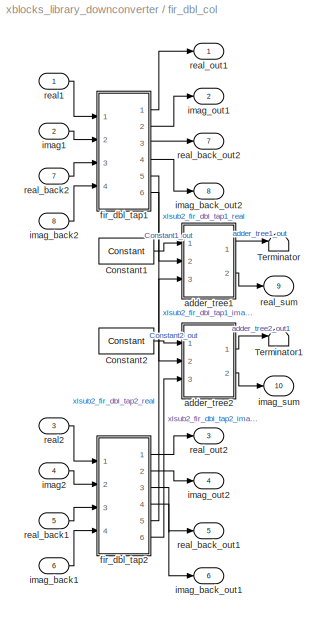
BLOCK [SubSystem] fir_dbl_col
  FunctionWithSeparateData = off
  MaskCallbackString = ||||||
  MaskDescription = (xBlock version)
  MaskEnableString = on,on,on,on,on,on,on
  MaskHelp = eval('xlWeb(''http://casper.berkeley.edu/wiki/Fir_dbl_col'')')
  MaskHideContents = off
  MaskIconFrame = on
  MaskIconOpaque = on
  MaskIconRotate = none
  MaskIconUnits = autoscale
  MaskInitialization = config.source = str2func('fir_dbl_col_init_xblock');\nconfig.toplevel = gcb;\nconfig.depend = get_dependlist('fir_dbl_col');\nset_param(gcb,'LinkStatus','inactive');\nxBlock(config, {config.toplevel, ...\n     n_inputs, ...\n     coeff, ...\n     add_latency, ...\n     mult_latency, ...\n     coeff_bit_width, ...\n     coeff_bin_pt,  ...\n     adder_tree_hdl});
  MaskPortRotate = default
  MaskPromptString = Inputs|Coefficients|Add latency|Mult Latency|Coefficient bit width|Coefficient binary point|Implement first stage of adder trees on output as behavioural HDL
  MaskSelfModifiable = on
  MaskStyleString = edit,edit,edit,edit,edit,edit,checkbox
  MaskToolTipString = on,on,on,on,on,on,on
  MaskTunableValueString = on,on,on,on,on,on,on
  MaskType = fir_dbl_col
  MaskValueString = 2|[0.1 0.2 0.3 0.4]|1|2|25|24|off
  MaskVariables = n_inputs=@1;coeff=@2;add_latency=@3;mult_latency=@4;coeff_bit_width=@5;coeff_bin_pt=@6;adder_tree_hdl=&7;
  MaskVisibilityString = on,on,on,on,on,on,on
  MinAlgLoopOccurrences = off
  Opaque = off
  Ports = [8, 10]
  PropExecContextOutsideSubsystem = off
  RTWSystemCode = Auto
  RequestExecContextInheritance = off
  SID = 463
  UserData = DataTag4
  UserDataPersistent = on
BLOCK [Reference] fir_dbl_col/Constant1  REF=xbsIndex_r4/Constant
  Ports = [0, 1]
  SID = 463:803
  SourceBlock = xbsIndex_r4/Constant
  SourceType = Xilinx Constant Block Block
  arith_type = Signed (2's comp)
  bin_pt = 14
  block_type = constant
  block_version = 11.4
  carry = CIN
  const = 1
  dbl_ovrd = off
  dsp48_infoedit = The use of this block for DSP48 instructions is deprecated.  Please use the Opmode block.
  equ = P=C
  explicit_period = on
  has_advanced_control = 0
  inp1 = P
  inp2 = PCIN>>17
  n_bits = 16
  opr = +
  opselect = C
  period = 1
  sg_icon_stat = 55,26,0,1,white,blue,0,1c72b5be,right,
  sggui_pos = -1,-1,-1,-1
BLOCK [Reference] fir_dbl_col/Constant2  REF=xbsIndex_r4/Constant
  Ports = [0, 1]
  SID = 463:804
  SourceBlock = xbsIndex_r4/Constant
  SourceType = Xilinx Constant Block Block
  arith_type = Signed (2's comp)
  bin_pt = 14
  block_type = constant
  block_version = 11.4
  carry = CIN
  const = 1
  dbl_ovrd = off
  dsp48_infoedit = The use of this block for DSP48 instructions is deprecated.  Please use the Opmode block.
  equ = P=C
  explicit_period = on
  has_advanced_control = 0
  inp1 = P
  inp2 = PCIN>>17
  n_bits = 16
  opr = +
  opselect = C
  period = 1
  sg_icon_stat = 55,26,0,1,white,blue,0,1c72b5be,right,
  sggui_pos = -1,-1,-1,-1
BLOCK [Terminator] fir_dbl_col/Terminator
  SID = 463:821
BLOCK [Terminator] fir_dbl_col/Terminator1
  SID = 463:822
BLOCK [SubSystem] fir_dbl_col/adder_tree1
  AttributesFormatString = latency 1
  FunctionWithSeparateData = off
  MaskHideContents = off
  MinAlgLoopOccurrences = off
  Opaque = off
  Ports = [3, 2]
  PropExecContextOutsideSubsystem = off
  RTWSystemCode = Auto
  RequestExecContextInheritance = off
  SID = 463:805
BLOCK [Reference] fir_dbl_col/adder_tree1/addr1  REF=xbsIndex_r4/AddSub
  Ports = [2, 1]
  SID = 463:812
  SourceBlock = xbsIndex_r4/AddSub
  SourceType = Xilinx Adder/Subtracter Block
  arith_type = Unsigned
  bin_pt = 14
  block_type = addsub
  block_version = 11.4
  dbl_ovrd = off
  en = off
  has_advanced_control = 0
  hw_selection = Fabric
  latency = 1
  mode = Addition
  n_bits = 16
  overflow = Wrap
  pipelined = on
  precision = Full
  quantization = Truncate
  sg_icon_stat = 60,58,2,1,white,blue,0,8ff03b5e,right,
  sggui_pos = -1,-1,-1,-1
  use_behavioral_HDL = off
  use_carryin = off
  use_carryout = off
  use_rpm = on
  xl_area = [0,0,0,0,0,0,0]
  xl_use_area = off
BLOCK [Inport] fir_dbl_col/adder_tree1/din1
  IconDisplay = Port number
  Port = 2
  SID = 463:808
BLOCK [Inport] fir_dbl_col/adder_tree1/din2
  IconDisplay = Port number
  Port = 3
  SID = 463:809
BLOCK [Outport] fir_dbl_col/adder_tree1/dout
  IconDisplay = Port number
  Port = 2
  SID = 463:810
BLOCK [Inport] fir_dbl_col/adder_tree1/sync
  IconDisplay = Port number
  SID = 463:806
BLOCK [Reference] fir_dbl_col/adder_tree1/sync_delay  REF=xbsIndex_r4/Delay
  Ports = [1, 1]
  SID = 463:811
  SourceBlock = xbsIndex_r4/Delay
  SourceType = Xilinx Delay Block
  block_type = delay
  block_version = 11.4
  dbl_ovrd = off
  en = off
  has_advanced_control = 0
  infoedit = Hardware notes: A delay line is a chain, each link of which is an SRL16 followed by a flip-flop.
  latency = 1
  reg_retiming = on
  sg_icon_stat = 60,56,1,1,white,blue,0,07b98262,right,
  sggui_pos = -1,-1,-1,-1
  xl_area = [0,0,0,0,0,0,0]
  xl_use_area = off
BLOCK [Outport] fir_dbl_col/adder_tree1/sync_out
  IconDisplay = Port number
  SID = 463:807
BLOCK [SubSystem] fir_dbl_col/adder_tree2
  AttributesFormatString = latency 1
  FunctionWithSeparateData = off
  MaskHideContents = off
  MinAlgLoopOccurrences = off
  Opaque = off
  Ports = [3, 2]
  PropExecContextOutsideSubsystem = off
  RTWSystemCode = Auto
  RequestExecContextInheritance = off
  SID = 463:813
BLOCK [Reference] fir_dbl_col/adder_tree2/addr1  REF=xbsIndex_r4/AddSub
  Ports = [2, 1]
  SID = 463:820
  SourceBlock = xbsIndex_r4/AddSub
  SourceType = Xilinx Adder/Subtracter Block
  arith_type = Unsigned
  bin_pt = 14
  block_type = addsub
  block_version = 11.4
  dbl_ovrd = off
  en = off
  has_advanced_control = 0
  hw_selection = Fabric
  latency = 1
  mode = Addition
  n_bits = 16
  overflow = Wrap
  pipelined = on
  precision = Full
  quantization = Truncate
  sg_icon_stat = 60,58,2,1,white,blue,0,8ff03b5e,right,
  sggui_pos = -1,-1,-1,-1
  use_behavioral_HDL = off
  use_carryin = off
  use_carryout = off
  use_rpm = on
  xl_area = [0,0,0,0,0,0,0]
  xl_use_area = off
BLOCK [Inport] fir_dbl_col/adder_tree2/din1
  IconDisplay = Port number
  Port = 2
  SID = 463:816
BLOCK [Inport] fir_dbl_col/adder_tree2/din2
  IconDisplay = Port number
  Port = 3
  SID = 463:817
BLOCK [Outport] fir_dbl_col/adder_tree2/dout
  IconDisplay = Port number
  Port = 2
  SID = 463:818
BLOCK [Inport] fir_dbl_col/adder_tree2/sync
  IconDisplay = Port number
  SID = 463:814
BLOCK [Reference] fir_dbl_col/adder_tree2/sync_delay  REF=xbsIndex_r4/Delay
  Ports = [1, 1]
  SID = 463:819
  SourceBlock = xbsIndex_r4/Delay
  SourceType = Xilinx Delay Block
  block_type = delay
  block_version = 11.4
  dbl_ovrd = off
  en = off
  has_advanced_control = 0
  infoedit = Hardware notes: A delay line is a chain, each link of which is an SRL16 followed by a flip-flop.
  latency = 1
  reg_retiming = on
  sg_icon_stat = 60,56,1,1,white,blue,0,07b98262,right,
  sggui_pos = -1,-1,-1,-1
  xl_area = [0,0,0,0,0,0,0]
  xl_use_area = off
BLOCK [Outport] fir_dbl_col/adder_tree2/sync_out
  IconDisplay = Port number
  SID = 463:815
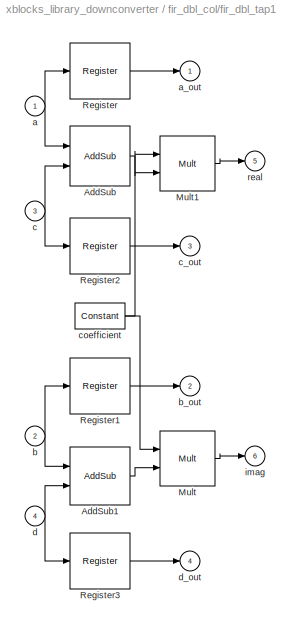
BLOCK [SubSystem] fir_dbl_col/fir_dbl_tap1
  FunctionWithSeparateData = off
  MaskHideContents = off
  MinAlgLoopOccurrences = off
  Opaque = off
  Ports = [4, 6]
  PropExecContextOutsideSubsystem = off
  RTWSystemCode = Auto
  RequestExecContextInheritance = off
  SID = 463:763
BLOCK [Reference] fir_dbl_col/fir_dbl_tap1/AddSub  REF=xbsIndex_r4/AddSub
  Ports = [2, 1]
  SID = 463:774
  SourceBlock = xbsIndex_r4/AddSub
  SourceType = Xilinx Adder/Subtracter Block
  arith_type = Signed  (2's comp)
  bin_pt = 16
  block_type = addsub
  block_version = 11.4
  dbl_ovrd = off
  en = off
  has_advanced_control = 0
  hw_selection = Fabric
  latency = 1
  mode = Addition
  n_bits = 18
  overflow = Wrap
  pipelined = off
  precision = Full
  quantization = Truncate
  sg_icon_stat = 60,60,2,1,white,blue,0,8ff03b5e,right,
  sg_mask_display = fprintf('','COMMENT: begin icon graphics');\npatch([0 1 1 0 ],[0 0 1 1 ],[0.77 0.82 0.91]);\npatch([0.233333 0.0666667 0.3 0.0666667 0.233333 0.5 0.566667 0.633333 0.916667 0.7 0.483333 0.333333 0.583333 0.333333 0.483333 0.7 0.916667 0.633333 0.566667 0.5 0.233333 ],[0.1 0.266667 0.5 0.733333 0.9 0.9 0.833333 0.9 0.9 0.683333 0.9 0.75 0.5 0.25 0.1 0.316667 0.1 0.1 0.166667 0.1 0.1 ],[0.98 0.96 0....<+390ch>  <repeated x3 — deduplicated; at blocks: AddSub>
  sggui_pos = -1,-1,-1,-1
  use_behavioral_HDL = on
  use_carryin = off
  use_carryout = off
  use_rpm = on
  xl_area = [0,0,0,0,0,0,0]
  xl_use_area = off
BLOCK [Reference] fir_dbl_col/fir_dbl_tap1/AddSub1  REF=xbsIndex_r4/AddSub
  Ports = [2, 1]
  SID = 463:775
  SourceBlock = xbsIndex_r4/AddSub
  SourceType = Xilinx Adder/Subtracter Block
  arith_type = Signed  (2's comp)
  bin_pt = 16
  block_type = addsub
  block_version = 11.4
  dbl_ovrd = off
  en = off
  has_advanced_control = 0
  hw_selection = Fabric
  latency = 1
  mode = Addition
  n_bits = 18
  overflow = Wrap
  pipelined = off
  precision = Full
  quantization = Truncate
  sg_icon_stat = 60,58,2,1,white,blue,0,8ff03b5e,right,
  sggui_pos = -1,-1,-1,-1
  use_behavioral_HDL = on
  use_carryin = off
  use_carryout = off
  use_rpm = on
  xl_area = [0,0,0,0,0,0,0]
  xl_use_area = off
BLOCK [Reference] fir_dbl_col/fir_dbl_tap1/Mult  REF=xbsIndex_r4/Mult
  Ports = [2, 1]
  SID = 463:776
  SourceBlock = xbsIndex_r4/Mult
  SourceType = Xilinx Multiplier Block
  arith_type = Signed  (2's comp)
  bin_pt = 17
  block_type = mult
  block_version = 11.4
  dbl_ovrd = off
  en = off
  has_advanced_control = 0
  latency = 2
  n_bits = 18
  opt = Speed
  optimum_pipeline = off
  overflow = Wrap
  pipeline = on
  placement_style = Rectangular shape
  precision = Full
  quantization = Truncate
  sg_icon_stat = 55,55,2,1,white,blue,0,9a78ff34,right,
  sggui_pos = -1,-1,-1,-1
  use_behavioral_HDL = on
  use_embedded = on
  use_rpm = off
  xl_area = [0,0,0,0,0,0,0]
  xl_use_area = off
BLOCK [Reference] fir_dbl_col/fir_dbl_tap1/Mult1  REF=xbsIndex_r4/Mult
  Ports = [2, 1]
  SID = 463:777
  SourceBlock = xbsIndex_r4/Mult
  SourceType = Xilinx Multiplier Block
  arith_type = Signed  (2's comp)
  bin_pt = 17
  block_type = mult
  block_version = 11.4
  dbl_ovrd = off
  en = off
  has_advanced_control = 0
  latency = 2
  n_bits = 18
  opt = Speed
  optimum_pipeline = off
  overflow = Wrap
  pipeline = on
  placement_style = Rectangular shape
  precision = Full
  quantization = Truncate
  sg_icon_stat = 55,55,2,1,white,blue,0,9a78ff34,right,
  sggui_pos = -1,-1,-1,-1
  use_behavioral_HDL = on
  use_embedded = on
  use_rpm = off
  xl_area = [0,0,0,0,0,0,0]
  xl_use_area = off
BLOCK [Reference] fir_dbl_col/fir_dbl_tap1/Register  REF=xbsIndex_r4/Register
  Ports = [1, 1]
  SID = 463:778
  SourceBlock = xbsIndex_r4/Register
  SourceType = Xilinx Register Block
  block_type = register
  block_version = 11.4
  dbl_ovrd = off
  en = off
  has_advanced_control = 0
  init = 0
  rst = off
  sg_icon_stat = 60,56,1,1,white,blue,0,ef2275f7,right,
  sggui_pos = -1,-1,-1,-1
  xl_area = [0,0,0,0,0,0,0]
  xl_use_area = off
BLOCK [Reference] fir_dbl_col/fir_dbl_tap1/Register1  REF=xbsIndex_r4/Register
  Ports = [1, 1]
  SID = 463:779
  SourceBlock = xbsIndex_r4/Register
  SourceType = Xilinx Register Block
  block_type = register
  block_version = 11.4
  dbl_ovrd = off
  en = off
  has_advanced_control = 0
  init = 0
  rst = off
  sg_icon_stat = 60,56,1,1,white,blue,0,ef2275f7,right,
  sggui_pos = -1,-1,-1,-1
  xl_area = [0,0,0,0,0,0,0]
  xl_use_area = off
BLOCK [Reference] fir_dbl_col/fir_dbl_tap1/Register2  REF=xbsIndex_r4/Register
  Ports = [1, 1]
  SID = 463:780
  SourceBlock = xbsIndex_r4/Register
  SourceType = Xilinx Register Block
  block_type = register
  block_version = 11.4
  dbl_ovrd = off
  en = off
  has_advanced_control = 0
  init = 0
  rst = off
  sg_icon_stat = 60,56,1,1,white,blue,0,ef2275f7,right,
  sggui_pos = -1,-1,-1,-1
  xl_area = [0,0,0,0,0,0,0]
  xl_use_area = off
BLOCK [Reference] fir_dbl_col/fir_dbl_tap1/Register3  REF=xbsIndex_r4/Register
  Ports = [1, 1]
  SID = 463:781
  SourceBlock = xbsIndex_r4/Register
  SourceType = Xilinx Register Block
  block_type = register
  block_version = 11.4
  dbl_ovrd = off
  en = off
  has_advanced_control = 0
  init = 0
  rst = off
  sg_icon_stat = 60,56,1,1,white,blue,0,ef2275f7,right,
  sggui_pos = -1,-1,-1,-1
  xl_area = [0,0,0,0,0,0,0]
  xl_use_area = off
BLOCK [Inport] fir_dbl_col/fir_dbl_tap1/a
  IconDisplay = Port number
  SID = 463:764
BLOCK [Outport] fir_dbl_col/fir_dbl_tap1/a_out
  IconDisplay = Port number
  SID = 463:768
BLOCK [Inport] fir_dbl_col/fir_dbl_tap1/b
  IconDisplay = Port number
  Port = 2
  SID = 463:765
BLOCK [Outport] fir_dbl_col/fir_dbl_tap1/b_out
  IconDisplay = Port number
  Port = 2
  SID = 463:769
BLOCK [Inport] fir_dbl_col/fir_dbl_tap1/c
  IconDisplay = Port number
  Port = 3
  SID = 463:766
BLOCK [Outport] fir_dbl_col/fir_dbl_tap1/c_out
  IconDisplay = Port number
  Port = 3
  SID = 463:770
BLOCK [Reference] fir_dbl_col/fir_dbl_tap1/coefficient  REF=xbsIndex_r4/Constant
  Ports = [0, 1]
  SID = 463:782
  SourceBlock = xbsIndex_r4/Constant
  SourceType = Xilinx Constant Block Block
  arith_type = Signed (2's comp)
  bin_pt = 24
  block_type = constant
  block_version = 11.4
  carry = CIN
  const = 0.1
  dbl_ovrd = off
  dsp48_infoedit = The use of this block for DSP48 instructions is deprecated.  Please use the Opmode block.
  equ = P=C
  explicit_period = on
  has_advanced_control = 0
  inp1 = P
  inp2 = PCIN>>17
  n_bits = 25
  opr = +
  opselect = C
  period = 1
  sg_icon_stat = 50,26,0,1,white,blue,0,3643e4bd,right,
  sg_mask_display = fprintf('','COMMENT: begin icon graphics');\npatch([0 1 1 0 ],[0 0 1 1 ],[0.77 0.82 0.91]);\npatch([0.36 0.28 0.4 0.28 0.36 0.5 0.54 0.58 0.72 0.6 0.48 0.4 0.52 0.4 0.48 0.6 0.72 0.58 0.54 0.5 0.36 ],[0.115385 0.269231 0.5 0.730769 0.884615 0.884615 0.807692 0.884615 0.884615 0.653846 0.884615 0.730769 0.5 0.269231 0.115385 0.346154 0.115385 0.115385 0.192308 0.115385 0.115385 ],[0.98 0.96 0.92]);...<+220ch>
  sggui_pos = -1,-1,-1,-1
BLOCK [Inport] fir_dbl_col/fir_dbl_tap1/d
  IconDisplay = Port number
  Port = 4
  SID = 463:767
BLOCK [Outport] fir_dbl_col/fir_dbl_tap1/d_out
  IconDisplay = Port number
  Port = 4
  SID = 463:771
BLOCK [Outport] fir_dbl_col/fir_dbl_tap1/imag
  IconDisplay = Port number
  Port = 6
  SID = 463:773
BLOCK [Outport] fir_dbl_col/fir_dbl_tap1/real
  IconDisplay = Port number
  Port = 5
  SID = 463:772
BLOCK [SubSystem] fir_dbl_col/fir_dbl_tap2
  FunctionWithSeparateData = off
  MaskHideContents = off
  MinAlgLoopOccurrences = off
  Opaque = off
  Ports = [4, 6]
  PropExecContextOutsideSubsystem = off
  RTWSystemCode = Auto
  RequestExecContextInheritance = off
  SID = 463:783
BLOCK [Reference] fir_dbl_col/fir_dbl_tap2/AddSub  REF=xbsIndex_r4/AddSub
  Ports = [2, 1]
  SID = 463:794
  SourceBlock = xbsIndex_r4/AddSub
  SourceType = Xilinx Adder/Subtracter Block
  arith_type = Signed  (2's comp)
  bin_pt = 16
  block_type = addsub
  block_version = 11.4
  dbl_ovrd = off
  en = off
  has_advanced_control = 0
  hw_selection = Fabric
  latency = 1
  mode = Addition
  n_bits = 18
  overflow = Wrap
  pipelined = off
  precision = Full
  quantization = Truncate
  sg_icon_stat = 60,60,2,1,white,blue,0,8ff03b5e,right,
  sggui_pos = -1,-1,-1,-1
  use_behavioral_HDL = on
  use_carryin = off
  use_carryout = off
  use_rpm = on
  xl_area = [0,0,0,0,0,0,0]
  xl_use_area = off
BLOCK [Reference] fir_dbl_col/fir_dbl_tap2/AddSub1  REF=xbsIndex_r4/AddSub
  Ports = [2, 1]
  SID = 463:795
  SourceBlock = xbsIndex_r4/AddSub
  SourceType = Xilinx Adder/Subtracter Block
  arith_type = Signed  (2's comp)
  bin_pt = 16
  block_type = addsub
  block_version = 11.4
  dbl_ovrd = off
  en = off
  has_advanced_control = 0
  hw_selection = Fabric
  latency = 1
  mode = Addition
  n_bits = 18
  overflow = Wrap
  pipelined = off
  precision = Full
  quantization = Truncate
  sg_icon_stat = 60,58,2,1,white,blue,0,8ff03b5e,right,
  sggui_pos = -1,-1,-1,-1
  use_behavioral_HDL = on
  use_carryin = off
  use_carryout = off
  use_rpm = on
  xl_area = [0,0,0,0,0,0,0]
  xl_use_area = off
BLOCK [Reference] fir_dbl_col/fir_dbl_tap2/Mult  REF=xbsIndex_r4/Mult
  Ports = [2, 1]
  SID = 463:796
  SourceBlock = xbsIndex_r4/Mult
  SourceType = Xilinx Multiplier Block
  arith_type = Signed  (2's comp)
  bin_pt = 17
  block_type = mult
  block_version = 11.4
  dbl_ovrd = off
  en = off
  has_advanced_control = 0
  latency = 2
  n_bits = 18
  opt = Speed
  optimum_pipeline = off
  overflow = Wrap
  pipeline = on
  placement_style = Rectangular shape
  precision = Full
  quantization = Truncate
  sg_icon_stat = 55,55,2,1,white,blue,0,9a78ff34,right,
  sggui_pos = -1,-1,-1,-1
  use_behavioral_HDL = on
  use_embedded = on
  use_rpm = off
  xl_area = [0,0,0,0,0,0,0]
  xl_use_area = off
BLOCK [Reference] fir_dbl_col/fir_dbl_tap2/Mult1  REF=xbsIndex_r4/Mult
  Ports = [2, 1]
  SID = 463:797
  SourceBlock = xbsIndex_r4/Mult
  SourceType = Xilinx Multiplier Block
  arith_type = Signed  (2's comp)
  bin_pt = 17
  block_type = mult
  block_version = 11.4
  dbl_ovrd = off
  en = off
  has_advanced_control = 0
  latency = 2
  n_bits = 18
  opt = Speed
  optimum_pipeline = off
  overflow = Wrap
  pipeline = on
  placement_style = Rectangular shape
  precision = Full
  quantization = Truncate
  sg_icon_stat = 55,55,2,1,white,blue,0,9a78ff34,right,
  sggui_pos = -1,-1,-1,-1
  use_behavioral_HDL = on
  use_embedded = on
  use_rpm = off
  xl_area = [0,0,0,0,0,0,0]
  xl_use_area = off
BLOCK [Reference] fir_dbl_col/fir_dbl_tap2/Register  REF=xbsIndex_r4/Register
  Ports = [1, 1]
  SID = 463:798
  SourceBlock = xbsIndex_r4/Register
  SourceType = Xilinx Register Block
  block_type = register
  block_version = 11.4
  dbl_ovrd = off
  en = off
  has_advanced_control = 0
  init = 0
  rst = off
  sg_icon_stat = 60,56,1,1,white,blue,0,ef2275f7,right,
  sggui_pos = -1,-1,-1,-1
  xl_area = [0,0,0,0,0,0,0]
  xl_use_area = off
BLOCK [Reference] fir_dbl_col/fir_dbl_tap2/Register1  REF=xbsIndex_r4/Register
  Ports = [1, 1]
  SID = 463:799
  SourceBlock = xbsIndex_r4/Register
  SourceType = Xilinx Register Block
  block_type = register
  block_version = 11.4
  dbl_ovrd = off
  en = off
  has_advanced_control = 0
  init = 0
  rst = off
  sg_icon_stat = 60,56,1,1,white,blue,0,ef2275f7,right,
  sggui_pos = -1,-1,-1,-1
  xl_area = [0,0,0,0,0,0,0]
  xl_use_area = off
BLOCK [Reference] fir_dbl_col/fir_dbl_tap2/Register2  REF=xbsIndex_r4/Register
  Ports = [1, 1]
  SID = 463:800
  SourceBlock = xbsIndex_r4/Register
  SourceType = Xilinx Register Block
  block_type = register
  block_version = 11.4
  dbl_ovrd = off
  en = off
  has_advanced_control = 0
  init = 0
  rst = off
  sg_icon_stat = 60,56,1,1,white,blue,0,ef2275f7,right,
  sggui_pos = -1,-1,-1,-1
  xl_area = [0,0,0,0,0,0,0]
  xl_use_area = off
BLOCK [Reference] fir_dbl_col/fir_dbl_tap2/Register3  REF=xbsIndex_r4/Register
  Ports = [1, 1]
  SID = 463:801
  SourceBlock = xbsIndex_r4/Register
  SourceType = Xilinx Register Block
  block_type = register
  block_version = 11.4
  dbl_ovrd = off
  en = off
  has_advanced_control = 0
  init = 0
  rst = off
  sg_icon_stat = 60,56,1,1,white,blue,0,ef2275f7,right,
  sggui_pos = -1,-1,-1,-1
  xl_area = [0,0,0,0,0,0,0]
  xl_use_area = off
BLOCK [Inport] fir_dbl_col/fir_dbl_tap2/a
  IconDisplay = Port number
  SID = 463:784
BLOCK [Outport] fir_dbl_col/fir_dbl_tap2/a_out
  IconDisplay = Port number
  SID = 463:788
BLOCK [Inport] fir_dbl_col/fir_dbl_tap2/b
  IconDisplay = Port number
  Port = 2
  SID = 463:785
BLOCK [Outport] fir_dbl_col/fir_dbl_tap2/b_out
  IconDisplay = Port number
  Port = 2
  SID = 463:789
BLOCK [Inport] fir_dbl_col/fir_dbl_tap2/c
  IconDisplay = Port number
  Port = 3
  SID = 463:786
BLOCK [Outport] fir_dbl_col/fir_dbl_tap2/c_out
  IconDisplay = Port number
  Port = 3
  SID = 463:790
BLOCK [Reference] fir_dbl_col/fir_dbl_tap2/coefficient  REF=xbsIndex_r4/Constant
  Ports = [0, 1]
  SID = 463:802
  SourceBlock = xbsIndex_r4/Constant
  SourceType = Xilinx Constant Block Block
  arith_type = Signed (2's comp)
  bin_pt = 24
  block_type = constant
  block_version = 11.4
  carry = CIN
  const = 0.2
  dbl_ovrd = off
  dsp48_infoedit = The use of this block for DSP48 instructions is deprecated.  Please use the Opmode block.
  equ = P=C
  explicit_period = on
  has_advanced_control = 0
  inp1 = P
  inp2 = PCIN>>17
  n_bits = 25
  opr = +
  opselect = C
  period = 1
  sg_icon_stat = 50,26,0,1,white,blue,0,a06ed0e5,right,
  sg_mask_display = fprintf('','COMMENT: begin icon graphics');\npatch([0 1 1 0 ],[0 0 1 1 ],[0.77 0.82 0.91]);\npatch([0.36 0.28 0.4 0.28 0.36 0.5 0.54 0.58 0.72 0.6 0.48 0.4 0.52 0.4 0.48 0.6 0.72 0.58 0.54 0.5 0.36 ],[0.115385 0.269231 0.5 0.730769 0.884615 0.884615 0.807692 0.884615 0.884615 0.653846 0.884615 0.730769 0.5 0.269231 0.115385 0.346154 0.115385 0.115385 0.192308 0.115385 0.115385 ],[0.98 0.96 0.92]);...<+219ch>
  sggui_pos = -1,-1,-1,-1
BLOCK [Inport] fir_dbl_col/fir_dbl_tap2/d
  IconDisplay = Port number
  Port = 4
  SID = 463:787
BLOCK [Outport] fir_dbl_col/fir_dbl_tap2/d_out
  IconDisplay = Port number
  Port = 4
  SID = 463:791
BLOCK [Outport] fir_dbl_col/fir_dbl_tap2/imag
  IconDisplay = Port number
  Port = 6
  SID = 463:793
BLOCK [Outport] fir_dbl_col/fir_dbl_tap2/real
  IconDisplay = Port number
  Port = 5
  SID = 463:792
BLOCK [Inport] fir_dbl_col/imag1
  IconDisplay = Port number
  Port = 2
  SID = 463:465
BLOCK [Inport] fir_dbl_col/imag2
  IconDisplay = Port number
  Port = 4
  SID = 463:467
BLOCK [Inport] fir_dbl_col/imag_back1
  IconDisplay = Port number
  Port = 6
  SID = 463:469
BLOCK [Inport] fir_dbl_col/imag_back2
  IconDisplay = Port number
  Port = 8
  SID = 463:471
BLOCK [Outport] fir_dbl_col/imag_back_out1
  IconDisplay = Port number
  Port = 6
  SID = 463:485
BLOCK [Outport] fir_dbl_col/imag_back_out2
  IconDisplay = Port number
  Port = 8
  SID = 463:487
BLOCK [Outport] fir_dbl_col/imag_out1
  IconDisplay = Port number
  Port = 2
  SID = 463:481
BLOCK [Outport] fir_dbl_col/imag_out2
  IconDisplay = Port number
  Port = 4
  SID = 463:483
BLOCK [Outport] fir_dbl_col/imag_sum
  IconDisplay = Port number
  Port = 10
  SID = 463:489
BLOCK [Inport] fir_dbl_col/real1
  IconDisplay = Port number
  SID = 463:464
BLOCK [Inport] fir_dbl_col/real2
  IconDisplay = Port number
  Port = 3
  SID = 463:466
BLOCK [Inport] fir_dbl_col/real_back1
  IconDisplay = Port number
  Port = 5
  SID = 463:468
BLOCK [Inport] fir_dbl_col/real_back2
  IconDisplay = Port number
  Port = 7
  SID = 463:470
BLOCK [Outport] fir_dbl_col/real_back_out1
  IconDisplay = Port number
  Port = 5
  SID = 463:484
BLOCK [Outport] fir_dbl_col/real_back_out2
  IconDisplay = Port number
  Port = 7
  SID = 463:486
BLOCK [Outport] fir_dbl_col/real_out1
  IconDisplay = Port number
  SID = 463:480
BLOCK [Outport] fir_dbl_col/real_out2
  IconDisplay = Port number
  Port = 3
  SID = 463:482
BLOCK [Outport] fir_dbl_col/real_sum
  IconDisplay = Port number
  Port = 9
  SID = 463:488
BLOCK [SubSystem] fir_dbl_tap
  FunctionWithSeparateData = off
  MaskCallbackString = ||||
  MaskDescription = (xBlock version)
  MaskEnableString = on,on,on,on,on
  MaskHelp = eval('xlWeb(''http://casper.berkeley.edu/wiki/Fir_dbl_tap'')')
  MaskHideContents = off
  MaskIconFrame = on
  MaskIconOpaque = on
  MaskIconRotate = none
  MaskIconUnits = autoscale
  MaskInitialization = config.source = str2func('fir_dbl_tap_init_xblock');\nconfig.toplevel = gcb;\nconfig.depend = get_dependlist('fir_dbl_tap');\nset_param(gcb,'LinkStatus','inactive');\nxBlock(config, {config.toplevel, ...\n    factor, ...\n    add_latency, ...\n    mult_latency, ...\n    coeff_bit_width, ...\n    coeff_bin_pt});
  MaskPortRotate = default
  MaskPromptString = factor|Add latency|Mult latency|Coefficient bit width|Coefficient binary point
  MaskSelfModifiable = on
  MaskStyleString = edit,edit,edit,edit,edit
  MaskToolTipString = on,on,on,on,on
  MaskTunableValueString = on,on,on,on,on
  MaskType = fir_dbl_tap
  MaskValueString = 0.073384|1|2|18|17
  MaskVariables = factor=@1;add_latency=@2;mult_latency=@3;coeff_bit_width=@4;coeff_bin_pt=@5;
  MaskVisibilityString = on,on,on,on,on
  MinAlgLoopOccurrences = off
  Opaque = off
  Ports = [4, 6]
  PropExecContextOutsideSubsystem = off
  RTWSystemCode = Auto
  RequestExecContextInheritance = off
  SID = 491
  UserData = DataTag5
  UserDataPersistent = on
BLOCK [Reference] fir_dbl_tap/AddSub  REF=xbsIndex_r4/AddSub
  Ports = [2, 1]
  SID = 491:505
  SourceBlock = xbsIndex_r4/AddSub
  SourceType = Xilinx Adder/Subtracter Block
  arith_type = Signed  (2's comp)
  bin_pt = 16
  block_type = addsub
  block_version = 11.4
  dbl_ovrd = off
  en = off
  has_advanced_control = 0
  hw_selection = Fabric
  latency = 1
  mode = Addition
  n_bits = 18
  overflow = Wrap
  pipelined = off
  precision = Full
  quantization = Truncate
  sg_icon_stat = 60,60,2,1,white,blue,0,8ff03b5e,right,
  sggui_pos = -1,-1,-1,-1
  use_behavioral_HDL = on
  use_carryin = off
  use_carryout = off
  use_rpm = on
  xl_area = [0,0,0,0,0,0,0]
  xl_use_area = off
BLOCK [Reference] fir_dbl_tap/AddSub1  REF=xbsIndex_r4/AddSub
  Ports = [2, 1]
  SID = 491:506
  SourceBlock = xbsIndex_r4/AddSub
  SourceType = Xilinx Adder/Subtracter Block
  arith_type = Signed  (2's comp)
  bin_pt = 16
  block_type = addsub
  block_version = 11.4
  dbl_ovrd = off
  en = off
  has_advanced_control = 0
  hw_selection = Fabric
  latency = 1
  mode = Addition
  n_bits = 18
  overflow = Wrap
  pipelined = off
  precision = Full
  quantization = Truncate
  sg_icon_stat = 60,58,2,1,white,blue,0,8ff03b5e,right,
  sggui_pos = -1,-1,-1,-1
  use_behavioral_HDL = on
  use_carryin = off
  use_carryout = off
  use_rpm = on
  xl_area = [0,0,0,0,0,0,0]
  xl_use_area = off
BLOCK [Reference] fir_dbl_tap/Mult  REF=xbsIndex_r4/Mult
  Ports = [2, 1]
  SID = 491:507
  SourceBlock = xbsIndex_r4/Mult
  SourceType = Xilinx Multiplier Block
  arith_type = Signed  (2's comp)
  bin_pt = 17
  block_type = mult
  block_version = 11.4
  dbl_ovrd = off
  en = off
  has_advanced_control = 0
  latency = 2
  n_bits = 18
  opt = Speed
  optimum_pipeline = off
  overflow = Wrap
  pipeline = on
  placement_style = Rectangular shape
  precision = Full
  quantization = Truncate
  sg_icon_stat = 55,55,2,1,white,blue,0,9a78ff34,right,
  sggui_pos = -1,-1,-1,-1
  use_behavioral_HDL = on
  use_embedded = on
  use_rpm = off
  xl_area = [0,0,0,0,0,0,0]
  xl_use_area = off
BLOCK [Reference] fir_dbl_tap/Mult1  REF=xbsIndex_r4/Mult
  Ports = [2, 1]
  SID = 491:508
  SourceBlock = xbsIndex_r4/Mult
  SourceType = Xilinx Multiplier Block
  arith_type = Signed  (2's comp)
  bin_pt = 17
  block_type = mult
  block_version = 11.4
  dbl_ovrd = off
  en = off
  has_advanced_control = 0
  latency = 2
  n_bits = 18
  opt = Speed
  optimum_pipeline = off
  overflow = Wrap
  pipeline = on
  placement_style = Rectangular shape
  precision = Full
  quantization = Truncate
  sg_icon_stat = 55,55,2,1,white,blue,0,9a78ff34,right,
  sggui_pos = -1,-1,-1,-1
  use_behavioral_HDL = on
  use_embedded = on
  use_rpm = off
  xl_area = [0,0,0,0,0,0,0]
  xl_use_area = off
BLOCK [Reference] fir_dbl_tap/Register  REF=xbsIndex_r4/Register
  Ports = [1, 1]
  SID = 491:509
  SourceBlock = xbsIndex_r4/Register
  SourceType = Xilinx Register Block
  block_type = register
  block_version = 11.4
  dbl_ovrd = off
  en = off
  has_advanced_control = 0
  init = 0
  rst = off
  sg_icon_stat = 60,56,1,1,white,blue,0,ef2275f7,right,
  sggui_pos = -1,-1,-1,-1
  xl_area = [0,0,0,0,0,0,0]
  xl_use_area = off
BLOCK [Reference] fir_dbl_tap/Register1  REF=xbsIndex_r4/Register
  Ports = [1, 1]
  SID = 491:510
  SourceBlock = xbsIndex_r4/Register
  SourceType = Xilinx Register Block
  block_type = register
  block_version = 11.4
  dbl_ovrd = off
  en = off
  has_advanced_control = 0
  init = 0
  rst = off
  sg_icon_stat = 60,56,1,1,white,blue,0,ef2275f7,right,
  sggui_pos = -1,-1,-1,-1
  xl_area = [0,0,0,0,0,0,0]
  xl_use_area = off
BLOCK [Reference] fir_dbl_tap/Register2  REF=xbsIndex_r4/Register
  Ports = [1, 1]
  SID = 491:511
  SourceBlock = xbsIndex_r4/Register
  SourceType = Xilinx Register Block
  block_type = register
  block_version = 11.4
  dbl_ovrd = off
  en = off
  has_advanced_control = 0
  init = 0
  rst = off
  sg_icon_stat = 60,56,1,1,white,blue,0,ef2275f7,right,
  sggui_pos = -1,-1,-1,-1
  xl_area = [0,0,0,0,0,0,0]
  xl_use_area = off
BLOCK [Reference] fir_dbl_tap/Register3  REF=xbsIndex_r4/Register
  Ports = [1, 1]
  SID = 491:512
  SourceBlock = xbsIndex_r4/Register
  SourceType = Xilinx Register Block
  block_type = register
  block_version = 11.4
  dbl_ovrd = off
  en = off
  has_advanced_control = 0
  init = 0
  rst = off
  sg_icon_stat = 60,56,1,1,white,blue,0,ef2275f7,right,
  sggui_pos = -1,-1,-1,-1
  xl_area = [0,0,0,0,0,0,0]
  xl_use_area = off
BLOCK [Inport] fir_dbl_tap/a
  IconDisplay = Port number
  SID = 491:492
BLOCK [Outport] fir_dbl_tap/a_out
  IconDisplay = Port number
  SID = 491:505
BLOCK [Inport] fir_dbl_tap/b
  IconDisplay = Port number
  Port = 2
  SID = 491:493
BLOCK [Outport] fir_dbl_tap/b_out
  IconDisplay = Port number
  Port = 2
  SID = 491:506
BLOCK [Inport] fir_dbl_tap/c
  IconDisplay = Port number
  Port = 3
  SID = 491:494
BLOCK [Outport] fir_dbl_tap/c_out
  IconDisplay = Port number
  Port = 3
  SID = 491:507
BLOCK [Reference] fir_dbl_tap/coefficient  REF=xbsIndex_r4/Constant
  Ports = [0, 1]
  SID = 491:513
  SourceBlock = xbsIndex_r4/Constant
  SourceType = Xilinx Constant Block Block
  arith_type = Signed (2's comp)
  bin_pt = 17
  block_type = constant
  block_version = 11.4
  carry = CIN
  const = 0.073384
  dbl_ovrd = off
  dsp48_infoedit = The use of this block for DSP48 instructions is deprecated.  Please use the Opmode block.
  equ = P=C
  explicit_period = on
  has_advanced_control = 0
  inp1 = P
  inp2 = PCIN>>17
  n_bits = 18
  opr = +
  opselect = C
  period = 1
  sg_icon_stat = 55,26,0,1,white,blue,0,4c2c494c,right,
  sg_mask_display = fprintf('','COMMENT: begin icon graphics');\npatch([0 1 1 0 ],[0 0 1 1 ],[0.77 0.82 0.91]);\npatch([0.363636 0.290909 0.4 0.290909 0.363636 0.490909 0.527273 0.563636 0.690909 0.581818 0.472727 0.4 0.509091 0.4 0.472727 0.581818 0.690909 0.563636 0.527273 0.490909 0.363636 ],[0.115385 0.269231 0.5 0.730769 0.884615 0.884615 0.807692 0.884615 0.884615 0.653846 0.884615 0.730769 0.5 0.269231 0.11538...<+297ch>
  sggui_pos = -1,-1,-1,-1
BLOCK [Inport] fir_dbl_tap/d
  IconDisplay = Port number
  Port = 4
  SID = 491:495
BLOCK [Outport] fir_dbl_tap/d_out
  IconDisplay = Port number
  Port = 4
  SID = 491:508
BLOCK [Outport] fir_dbl_tap/imag
  IconDisplay = Port number
  Port = 6
  SID = 491:510
BLOCK [Outport] fir_dbl_tap/real
  IconDisplay = Port number
  Port = 5
  SID = 491:509
BLOCK [SubSystem] fir_tap
  FunctionWithSeparateData = off
  MaskCallbackString = |||
  MaskDescription = Multiplies input data with factor specified.\n(xBlock version)
  MaskEnableString = on,on,on,on
  MaskHelp = eval('xlWeb(''http://casper.berkeley.edu/wiki/Fir_tap'')')
  MaskHideContents = off
  MaskIconFrame = on
  MaskIconOpaque = on
  MaskIconRotate = none
  MaskIconUnits = autoscale
  MaskInitialization = config.source = str2func('fir_tap_init_xblock');\nconfig.toplevel = gcb;\nconfig.depend = get_dependlist('fir_tap');\nset_param(gcb,'LinkStatus','inactive');\nxBlock(config,{config.toplevel, ...\n    factor, ...\n    latency, ...\n    coeff_bit_width, ...\n    coeff_bin_pt});
  MaskPortRotate = default
  MaskPromptString = Factor|Mult latency|Coefficient bit width|Coefficient binary point
  MaskSelfModifiable = on
  MaskStyleString = edit,edit,edit,edit
  MaskToolTipString = on,on,on,on
  MaskTunableValueString = on,on,on,on
  MaskType = fir_tap
  MaskValueString = 1|2|25|24
  MaskVariables = factor=@1;latency=@2;coeff_bit_width=@3;coeff_bin_pt=@4;
  MaskVisibilityString = on,on,on,on
  MinAlgLoopOccurrences = off
  Opaque = off
  Ports = [2, 4]
  PropExecContextOutsideSubsystem = off
  RTWSystemCode = Auto
  RequestExecContextInheritance = off
  SID = 490
  UserData = DataTag6
  UserDataPersistent = on
BLOCK [Reference] fir_tap/Constant  REF=xbsIndex_r4/Constant
  Ports = [0, 1]
  SID = 490:523
  SourceBlock = xbsIndex_r4/Constant
  SourceType = Xilinx Constant Block Block
  arith_type = Signed (2's comp)
  bin_pt = 24
  block_type = constant
  carry = CIN
  const = 1
  dbl_ovrd = off
  dsp48_infoedit = The use of this block for DSP48 instructions is deprecated.  Please use the Opmode block.
  equ = P=C
  exp_width = 8
  explicit_period = on
  frac_width = 24
  gui_display_data_type = Fixed-point
  has_advanced_control = 0
  inp1 = P
  inp2 = PCIN>>17
  n_bits = 25
  opr = +
  opselect = C
  period = 1
  preci_type = Single
  sg_icon_stat = 55,26,0,1,white,blue,0,524c6e09,right,,[ ],[ ]
  sggui_pos = -1,-1,-1,-1
BLOCK [Reference] fir_tap/Mult  REF=xbsIndex_r4/Mult
  Ports = [2, 1]
  SID = 490:524
  SourceBlock = xbsIndex_r4/Mult
  SourceType = Xilinx Multiplier Block
  arith_type = Signed  (2's comp)
  bin_pt = 17
  block_type = mult
  dbl_ovrd = off
  en = off
  has_advanced_control = 0
  latency = 2
  n_bits = 18
  opt = Speed
  optimum_pipeline = off
  overflow = Wrap
  pipeline = on
  placement_style = Rectangular shape
  precision = Full
  quantization = Truncate
  sg_icon_stat = 55,55,2,1,white,blue,0,2fbe4d8a,right,,[ ],[ ]
  sggui_pos = -1,-1,-1,-1
  use_behavioral_HDL = on
  use_embedded = on
  use_rpm = off
  xl_area = [0,0,0,0,0,0,0]
  xl_use_area = off
BLOCK [Reference] fir_tap/Mult1  REF=xbsIndex_r4/Mult
  Ports = [2, 1]
  SID = 490:525
  SourceBlock = xbsIndex_r4/Mult
  SourceType = Xilinx Multiplier Block
  arith_type = Signed  (2's comp)
  bin_pt = 17
  block_type = mult
  dbl_ovrd = off
  en = off
  has_advanced_control = 0
  latency = 2
  n_bits = 18
  opt = Speed
  optimum_pipeline = off
  overflow = Wrap
  pipeline = on
  placement_style = Rectangular shape
  precision = Full
  quantization = Truncate
  sg_icon_stat = 55,55,2,1,white,blue,0,2fbe4d8a,right,,[ ],[ ]
  sggui_pos = -1,-1,-1,-1
  use_behavioral_HDL = on
  use_embedded = on
  use_rpm = off
  xl_area = [0,0,0,0,0,0,0]
  xl_use_area = off
BLOCK [Reference] fir_tap/Register  REF=xbsIndex_r4/Register
  Ports = [1, 1]
  SID = 490:526
  SourceBlock = xbsIndex_r4/Register
  SourceType = Xilinx Register Block
  block_type = register
  dbl_ovrd = off
  en = off
  has_advanced_control = 0
  init = 0
  rst = off
  sg_icon_stat = 60,56,1,1,white,blue,0,c80657c5,right,,[ ],[ ]
  sggui_pos = -1,-1,-1,-1
  xl_area = [0,0,0,0,0,0,0]
  xl_use_area = off
BLOCK [Reference] fir_tap/Register1  REF=xbsIndex_r4/Register
  Ports = [1, 1]
  SID = 490:527
  SourceBlock = xbsIndex_r4/Register
  SourceType = Xilinx Register Block
  block_type = register
  dbl_ovrd = off
  en = off
  has_advanced_control = 0
  init = 0
  rst = off
  sg_icon_stat = 60,56,1,1,white,blue,0,c80657c5,right,,[ ],[ ]
  sggui_pos = -1,-1,-1,-1
  xl_area = [0,0,0,0,0,0,0]
  xl_use_area = off
BLOCK [Inport] fir_tap/a
  IconDisplay = Port number
  SID = 490:511
BLOCK [Outport] fir_tap/a_out
  IconDisplay = Port number
  SID = 490:518
BLOCK [Inport] fir_tap/b
  IconDisplay = Port number
  Port = 2
  SID = 490:512
BLOCK [Outport] fir_tap/b_out
  IconDisplay = Port number
  Port = 2
  SID = 490:519
BLOCK [Outport] fir_tap/imag
  IconDisplay = Port number
  Port = 4
  SID = 490:521
BLOCK [Outport] fir_tap/real
  IconDisplay = Port number
  Port = 3
  SID = 490:520
LINE Down Sample/In:1 -> Down Sample/Register:1
LINE Down Sample/Register:1 -> Down Sample/Out:1
LINE Down Sample/en_gen/Constant:1 -> Down Sample/en_gen/Relational:2
LINE Down Sample/en_gen/Counter1:1 -> Down Sample/en_gen/Relational:1
LINE Down Sample/en_gen/Relational:1 -> Down Sample/en_gen/en_out:1
LINE Down Sample/en_gen/sync_in:1 -> Down Sample/en_gen/Counter1:1
LINE Down Sample/en_gen:1 -> Down Sample/Register:2
LINE Down Sample/sync_delay:1 -> Down Sample/sync_out:1
NET Down Sample/sync_in:1 -> Down Sample/en_gen:1, Down Sample/sync_delay:1
LINE Down Sampler/In1:1 -> Down Sampler/delay1:1
LINE dec_fir_xblock/convert1:1 -> dec_fir_xblock/ri_to_c:1
LINE dec_fir_xblock/convert2:1 -> dec_fir_xblock/ri_to_c:2
NET dec_fir_xblock/delay:1 -> dec_fir_xblock/imag_sum:1, dec_fir_xblock/real_sum:1
LINE dec_fir_xblock/fir_col1/Constant1:1 -> dec_fir_xblock/fir_col1/adder_tree1:1
LINE dec_fir_xblock/fir_col1/Constant2:1 -> dec_fir_xblock/fir_col1/adder_tree2:1
LINE dec_fir_xblock/fir_col1/adder_tree1/addr1:1 -> dec_fir_xblock/fir_col1/adder_tree1/dout:1
LINE dec_fir_xblock/fir_col1/adder_tree1/din1:1 -> dec_fir_xblock/fir_col1/adder_tree1/addr1:1
LINE dec_fir_xblock/fir_col1/adder_tree1/din2:1 -> dec_fir_xblock/fir_col1/adder_tree1/addr1:2
LINE dec_fir_xblock/fir_col1/adder_tree1/sync:1 -> dec_fir_xblock/fir_col1/adder_tree1/sync_delay:1
LINE dec_fir_xblock/fir_col1/adder_tree1/sync_delay:1 -> dec_fir_xblock/fir_col1/adder_tree1/sync_out:1
LINE dec_fir_xblock/fir_col1/adder_tree1:1 -> dec_fir_xblock/fir_col1/Terminator:1
LINE dec_fir_xblock/fir_col1/adder_tree1:2 -> dec_fir_xblock/fir_col1/real_sum:1
LINE dec_fir_xblock/fir_col1/adder_tree2/addr1:1 -> dec_fir_xblock/fir_col1/adder_tree2/dout:1
LINE dec_fir_xblock/fir_col1/adder_tree2/din1:1 -> dec_fir_xblock/fir_col1/adder_tree2/addr1:1
LINE dec_fir_xblock/fir_col1/adder_tree2/din2:1 -> dec_fir_xblock/fir_col1/adder_tree2/addr1:2
LINE dec_fir_xblock/fir_col1/adder_tree2/sync:1 -> dec_fir_xblock/fir_col1/adder_tree2/sync_delay:1
LINE dec_fir_xblock/fir_col1/adder_tree2/sync_delay:1 -> dec_fir_xblock/fir_col1/adder_tree2/sync_out:1
LINE dec_fir_xblock/fir_col1/adder_tree2:1 -> dec_fir_xblock/fir_col1/Terminator1:1
LINE dec_fir_xblock/fir_col1/adder_tree2:2 -> dec_fir_xblock/fir_col1/imag_sum:1
NET dec_fir_xblock/fir_col1/fir_tap1/Constant:1 -> dec_fir_xblock/fir_col1/fir_tap1/Mult1:1, dec_fir_xblock/fir_col1/fir_tap1/Mult:1
LINE dec_fir_xblock/fir_col1/fir_tap1/Mult1:1 -> dec_fir_xblock/fir_col1/fir_tap1/real:1
LINE dec_fir_xblock/fir_col1/fir_tap1/Mult:1 -> dec_fir_xblock/fir_col1/fir_tap1/imag:1
LINE dec_fir_xblock/fir_col1/fir_tap1/Register1:1 -> dec_fir_xblock/fir_col1/fir_tap1/b_out:1
LINE dec_fir_xblock/fir_col1/fir_tap1/Register:1 -> dec_fir_xblock/fir_col1/fir_tap1/a_out:1
NET dec_fir_xblock/fir_col1/fir_tap1/a:1 -> dec_fir_xblock/fir_col1/fir_tap1/Mult1:2, dec_fir_xblock/fir_col1/fir_tap1/Register:1
NET dec_fir_xblock/fir_col1/fir_tap1/b:1 -> dec_fir_xblock/fir_col1/fir_tap1/Mult:2, dec_fir_xblock/fir_col1/fir_tap1/Register1:1
LINE dec_fir_xblock/fir_col1/fir_tap1:1 -> dec_fir_xblock/fir_col1/real_out1:1
LINE dec_fir_xblock/fir_col1/fir_tap1:2 -> dec_fir_xblock/fir_col1/imag_out1:1
LINE dec_fir_xblock/fir_col1/fir_tap1:3 -> dec_fir_xblock/fir_col1/adder_tree1:2
LINE dec_fir_xblock/fir_col1/fir_tap1:4 -> dec_fir_xblock/fir_col1/adder_tree2:2
NET dec_fir_xblock/fir_col1/fir_tap2/Constant:1 -> dec_fir_xblock/fir_col1/fir_tap2/Mult1:1, dec_fir_xblock/fir_col1/fir_tap2/Mult:1
LINE dec_fir_xblock/fir_col1/fir_tap2/Mult1:1 -> dec_fir_xblock/fir_col1/fir_tap2/real:1
LINE dec_fir_xblock/fir_col1/fir_tap2/Mult:1 -> dec_fir_xblock/fir_col1/fir_tap2/imag:1
LINE dec_fir_xblock/fir_col1/fir_tap2/Register1:1 -> dec_fir_xblock/fir_col1/fir_tap2/b_out:1
LINE dec_fir_xblock/fir_col1/fir_tap2/Register:1 -> dec_fir_xblock/fir_col1/fir_tap2/a_out:1
NET dec_fir_xblock/fir_col1/fir_tap2/a:1 -> dec_fir_xblock/fir_col1/fir_tap2/Mult1:2, dec_fir_xblock/fir_col1/fir_tap2/Register:1
NET dec_fir_xblock/fir_col1/fir_tap2/b:1 -> dec_fir_xblock/fir_col1/fir_tap2/Mult:2, dec_fir_xblock/fir_col1/fir_tap2/Register1:1
LINE dec_fir_xblock/fir_col1/fir_tap2:1 -> dec_fir_xblock/fir_col1/real_out2:1
LINE dec_fir_xblock/fir_col1/fir_tap2:2 -> dec_fir_xblock/fir_col1/imag_out2:1
LINE dec_fir_xblock/fir_col1/fir_tap2:3 -> dec_fir_xblock/fir_col1/adder_tree1:3
LINE dec_fir_xblock/fir_col1/fir_tap2:4 -> dec_fir_xblock/fir_col1/adder_tree2:3
LINE dec_fir_xblock/fir_col1/imag1:1 -> dec_fir_xblock/fir_col1/fir_tap1:2
LINE dec_fir_xblock/fir_col1/imag2:1 -> dec_fir_xblock/fir_col1/fir_tap2:2
LINE dec_fir_xblock/fir_col1/real1:1 -> dec_fir_xblock/fir_col1/fir_tap1:1
LINE dec_fir_xblock/fir_col1/real2:1 -> dec_fir_xblock/fir_col1/fir_tap2:1
LINE dec_fir_xblock/fir_col1:1 -> dec_fir_xblock/fir_col2:1
LINE dec_fir_xblock/fir_col1:2 -> dec_fir_xblock/fir_col2:2
LINE dec_fir_xblock/fir_col1:3 -> dec_fir_xblock/fir_col2:3
LINE dec_fir_xblock/fir_col1:4 -> dec_fir_xblock/fir_col2:4
LINE dec_fir_xblock/fir_col1:5 -> dec_fir_xblock/real_sum:2
LINE dec_fir_xblock/fir_col1:6 -> dec_fir_xblock/imag_sum:2
LINE dec_fir_xblock/fir_col2/Constant1:1 -> dec_fir_xblock/fir_col2/adder_tree1:1
LINE dec_fir_xblock/fir_col2/Constant2:1 -> dec_fir_xblock/fir_col2/adder_tree2:1
LINE dec_fir_xblock/fir_col2/adder_tree1/addr1:1 -> dec_fir_xblock/fir_col2/adder_tree1/dout:1
LINE dec_fir_xblock/fir_col2/adder_tree1/din1:1 -> dec_fir_xblock/fir_col2/adder_tree1/addr1:1
LINE dec_fir_xblock/fir_col2/adder_tree1/din2:1 -> dec_fir_xblock/fir_col2/adder_tree1/addr1:2
LINE dec_fir_xblock/fir_col2/adder_tree1/sync:1 -> dec_fir_xblock/fir_col2/adder_tree1/sync_delay:1
LINE dec_fir_xblock/fir_col2/adder_tree1/sync_delay:1 -> dec_fir_xblock/fir_col2/adder_tree1/sync_out:1
LINE dec_fir_xblock/fir_col2/adder_tree1:1 -> dec_fir_xblock/fir_col2/Terminator2:1
LINE dec_fir_xblock/fir_col2/adder_tree1:2 -> dec_fir_xblock/fir_col2/real_sum:1
LINE dec_fir_xblock/fir_col2/adder_tree2/addr1:1 -> dec_fir_xblock/fir_col2/adder_tree2/dout:1
LINE dec_fir_xblock/fir_col2/adder_tree2/din1:1 -> dec_fir_xblock/fir_col2/adder_tree2/addr1:1
LINE dec_fir_xblock/fir_col2/adder_tree2/din2:1 -> dec_fir_xblock/fir_col2/adder_tree2/addr1:2
LINE dec_fir_xblock/fir_col2/adder_tree2/sync:1 -> dec_fir_xblock/fir_col2/adder_tree2/sync_delay:1
LINE dec_fir_xblock/fir_col2/adder_tree2/sync_delay:1 -> dec_fir_xblock/fir_col2/adder_tree2/sync_out:1
LINE dec_fir_xblock/fir_col2/adder_tree2:1 -> dec_fir_xblock/fir_col2/Terminator3:1
LINE dec_fir_xblock/fir_col2/adder_tree2:2 -> dec_fir_xblock/fir_col2/imag_sum:1
NET dec_fir_xblock/fir_col2/fir_tap1/Constant:1 -> dec_fir_xblock/fir_col2/fir_tap1/Mult1:1, dec_fir_xblock/fir_col2/fir_tap1/Mult:1
LINE dec_fir_xblock/fir_col2/fir_tap1/Mult1:1 -> dec_fir_xblock/fir_col2/fir_tap1/real:1
LINE dec_fir_xblock/fir_col2/fir_tap1/Mult:1 -> dec_fir_xblock/fir_col2/fir_tap1/imag:1
LINE dec_fir_xblock/fir_col2/fir_tap1/Register1:1 -> dec_fir_xblock/fir_col2/fir_tap1/b_out:1
LINE dec_fir_xblock/fir_col2/fir_tap1/Register:1 -> dec_fir_xblock/fir_col2/fir_tap1/a_out:1
NET dec_fir_xblock/fir_col2/fir_tap1/a:1 -> dec_fir_xblock/fir_col2/fir_tap1/Mult1:2, dec_fir_xblock/fir_col2/fir_tap1/Register:1
NET dec_fir_xblock/fir_col2/fir_tap1/b:1 -> dec_fir_xblock/fir_col2/fir_tap1/Mult:2, dec_fir_xblock/fir_col2/fir_tap1/Register1:1
LINE dec_fir_xblock/fir_col2/fir_tap1:1 -> dec_fir_xblock/fir_col2/real_out1:1
LINE dec_fir_xblock/fir_col2/fir_tap1:2 -> dec_fir_xblock/fir_col2/imag_out1:1
LINE dec_fir_xblock/fir_col2/fir_tap1:3 -> dec_fir_xblock/fir_col2/adder_tree1:2
LINE dec_fir_xblock/fir_col2/fir_tap1:4 -> dec_fir_xblock/fir_col2/adder_tree2:2
NET dec_fir_xblock/fir_col2/fir_tap2/Constant:1 -> dec_fir_xblock/fir_col2/fir_tap2/Mult1:1, dec_fir_xblock/fir_col2/fir_tap2/Mult:1
LINE dec_fir_xblock/fir_col2/fir_tap2/Mult1:1 -> dec_fir_xblock/fir_col2/fir_tap2/real:1
LINE dec_fir_xblock/fir_col2/fir_tap2/Mult:1 -> dec_fir_xblock/fir_col2/fir_tap2/imag:1
LINE dec_fir_xblock/fir_col2/fir_tap2/Register1:1 -> dec_fir_xblock/fir_col2/fir_tap2/b_out:1
LINE dec_fir_xblock/fir_col2/fir_tap2/Register:1 -> dec_fir_xblock/fir_col2/fir_tap2/a_out:1
NET dec_fir_xblock/fir_col2/fir_tap2/a:1 -> dec_fir_xblock/fir_col2/fir_tap2/Mult1:2, dec_fir_xblock/fir_col2/fir_tap2/Register:1
NET dec_fir_xblock/fir_col2/fir_tap2/b:1 -> dec_fir_xblock/fir_col2/fir_tap2/Mult:2, dec_fir_xblock/fir_col2/fir_tap2/Register1:1
LINE dec_fir_xblock/fir_col2/fir_tap2:1 -> dec_fir_xblock/fir_col2/real_out2:1
LINE dec_fir_xblock/fir_col2/fir_tap2:2 -> dec_fir_xblock/fir_col2/imag_out2:1
LINE dec_fir_xblock/fir_col2/fir_tap2:3 -> dec_fir_xblock/fir_col2/adder_tree1:3
LINE dec_fir_xblock/fir_col2/fir_tap2:4 -> dec_fir_xblock/fir_col2/adder_tree2:3
LINE dec_fir_xblock/fir_col2/imag1:1 -> dec_fir_xblock/fir_col2/fir_tap1:2
LINE dec_fir_xblock/fir_col2/imag2:1 -> dec_fir_xblock/fir_col2/fir_tap2:2
LINE dec_fir_xblock/fir_col2/real1:1 -> dec_fir_xblock/fir_col2/fir_tap1:1
LINE dec_fir_xblock/fir_col2/real2:1 -> dec_fir_xblock/fir_col2/fir_tap2:1
LINE dec_fir_xblock/fir_col2:5 -> dec_fir_xblock/real_sum:3
LINE dec_fir_xblock/fir_col2:6 -> dec_fir_xblock/imag_sum:3
LINE dec_fir_xblock/imag1:1 -> dec_fir_xblock/fir_col1:2
LINE dec_fir_xblock/imag2:1 -> dec_fir_xblock/fir_col1:4
LINE dec_fir_xblock/imag_sum/addr1:1 -> dec_fir_xblock/imag_sum/dout:1
LINE dec_fir_xblock/imag_sum/din1:1 -> dec_fir_xblock/imag_sum/addr1:1
LINE dec_fir_xblock/imag_sum/din2:1 -> dec_fir_xblock/imag_sum/addr1:2
LINE dec_fir_xblock/imag_sum/sync:1 -> dec_fir_xblock/imag_sum/sync_delay:1
LINE dec_fir_xblock/imag_sum/sync_delay:1 -> dec_fir_xblock/imag_sum/sync_out:1
LINE dec_fir_xblock/imag_sum:2 -> dec_fir_xblock/shift2:1
LINE dec_fir_xblock/real1:1 -> dec_fir_xblock/fir_col1:1
LINE dec_fir_xblock/real2:1 -> dec_fir_xblock/fir_col1:3
LINE dec_fir_xblock/real_sum/addr1:1 -> dec_fir_xblock/real_sum/dout:1
LINE dec_fir_xblock/real_sum/din1:1 -> dec_fir_xblock/real_sum/addr1:1
LINE dec_fir_xblock/real_sum/din2:1 -> dec_fir_xblock/real_sum/addr1:2
LINE dec_fir_xblock/real_sum/sync:1 -> dec_fir_xblock/real_sum/sync_delay:1
LINE dec_fir_xblock/real_sum/sync_delay:1 -> dec_fir_xblock/real_sum/sync_out:1
LINE dec_fir_xblock/real_sum:1 -> dec_fir_xblock/sync_out:1
LINE dec_fir_xblock/real_sum:2 -> dec_fir_xblock/shift1:1
LINE dec_fir_xblock/ri_to_c/concat:1 -> dec_fir_xblock/ri_to_c/c:1
LINE dec_fir_xblock/ri_to_c/force_im:1 -> dec_fir_xblock/ri_to_c/concat:2
LINE dec_fir_xblock/ri_to_c/force_re:1 -> dec_fir_xblock/ri_to_c/concat:1
LINE dec_fir_xblock/ri_to_c/im:1 -> dec_fir_xblock/ri_to_c/force_im:1
LINE dec_fir_xblock/ri_to_c/re:1 -> dec_fir_xblock/ri_to_c/force_re:1
LINE dec_fir_xblock/ri_to_c:1 -> dec_fir_xblock/dout:1
LINE dec_fir_xblock/shift1:1 -> dec_fir_xblock/convert1:1
LINE dec_fir_xblock/shift2:1 -> dec_fir_xblock/convert2:1
LINE dec_fir_xblock/sync_in:1 -> dec_fir_xblock/delay:1
LINE fir_col/Constant1:1 -> fir_col/adder_tree1:1
LINE fir_col/Constant2:1 -> fir_col/adder_tree2:1
LINE fir_col/adder_tree1/addr1:1 -> fir_col/adder_tree1/dout:1
LINE fir_col/adder_tree1/din1:1 -> fir_col/adder_tree1/addr1:1
LINE fir_col/adder_tree1/din2:1 -> fir_col/adder_tree1/addr1:2
LINE fir_col/adder_tree1/sync:1 -> fir_col/adder_tree1/sync_delay:1
LINE fir_col/adder_tree1/sync_delay:1 -> fir_col/adder_tree1/sync_out:1
LINE fir_col/adder_tree1:1 -> fir_col/Terminator:1
LINE fir_col/adder_tree1:2 -> fir_col/real_sum:1
LINE fir_col/adder_tree2/addr1:1 -> fir_col/adder_tree2/dout:1
LINE fir_col/adder_tree2/din1:1 -> fir_col/adder_tree2/addr1:1
LINE fir_col/adder_tree2/din2:1 -> fir_col/adder_tree2/addr1:2
LINE fir_col/adder_tree2/sync:1 -> fir_col/adder_tree2/sync_delay:1
LINE fir_col/adder_tree2/sync_delay:1 -> fir_col/adder_tree2/sync_out:1
LINE fir_col/adder_tree2:1 -> fir_col/Terminator1:1
LINE fir_col/adder_tree2:2 -> fir_col/imag_sum:1
NET fir_col/fir_tap1/Constant:1 -> fir_col/fir_tap1/Mult1:1, fir_col/fir_tap1/Mult:1
LINE fir_col/fir_tap1/Mult1:1 -> fir_col/fir_tap1/real:1
LINE fir_col/fir_tap1/Mult:1 -> fir_col/fir_tap1/imag:1
LINE fir_col/fir_tap1/Register1:1 -> fir_col/fir_tap1/b_out:1
LINE fir_col/fir_tap1/Register:1 -> fir_col/fir_tap1/a_out:1
NET fir_col/fir_tap1/a:1 -> fir_col/fir_tap1/Mult1:2, fir_col/fir_tap1/Register:1
NET fir_col/fir_tap1/b:1 -> fir_col/fir_tap1/Mult:2, fir_col/fir_tap1/Register1:1
LINE fir_col/fir_tap1:1 -> fir_col/real_out1:1
LINE fir_col/fir_tap1:2 -> fir_col/imag_out1:1
LINE fir_col/fir_tap1:3 -> fir_col/adder_tree1:2
LINE fir_col/fir_tap1:4 -> fir_col/adder_tree2:2
NET fir_col/fir_tap2/Constant:1 -> fir_col/fir_tap2/Mult1:1, fir_col/fir_tap2/Mult:1
LINE fir_col/fir_tap2/Mult1:1 -> fir_col/fir_tap2/real:1
LINE fir_col/fir_tap2/Mult:1 -> fir_col/fir_tap2/imag:1
LINE fir_col/fir_tap2/Register1:1 -> fir_col/fir_tap2/b_out:1
LINE fir_col/fir_tap2/Register:1 -> fir_col/fir_tap2/a_out:1
NET fir_col/fir_tap2/a:1 -> fir_col/fir_tap2/Mult1:2, fir_col/fir_tap2/Register:1
NET fir_col/fir_tap2/b:1 -> fir_col/fir_tap2/Mult:2, fir_col/fir_tap2/Register1:1
LINE fir_col/fir_tap2:1 -> fir_col/real_out2:1
LINE fir_col/fir_tap2:2 -> fir_col/imag_out2:1
LINE fir_col/fir_tap2:3 -> fir_col/adder_tree1:3
LINE fir_col/fir_tap2:4 -> fir_col/adder_tree2:3
LINE fir_col/imag1:1 -> fir_col/fir_tap1:2
LINE fir_col/imag2:1 -> fir_col/fir_tap2:2
LINE fir_col/real1:1 -> fir_col/fir_tap1:1
LINE fir_col/real2:1 -> fir_col/fir_tap2:1
LINE fir_dbl_col/Constant1:1 -> fir_dbl_col/adder_tree1:1
LINE fir_dbl_col/Constant2:1 -> fir_dbl_col/adder_tree2:1
LINE fir_dbl_col/adder_tree1/addr1:1 -> fir_dbl_col/adder_tree1/dout:1
LINE fir_dbl_col/adder_tree1/din1:1 -> fir_dbl_col/adder_tree1/addr1:1
LINE fir_dbl_col/adder_tree1/din2:1 -> fir_dbl_col/adder_tree1/addr1:2
LINE fir_dbl_col/adder_tree1/sync:1 -> fir_dbl_col/adder_tree1/sync_delay:1
LINE fir_dbl_col/adder_tree1/sync_delay:1 -> fir_dbl_col/adder_tree1/sync_out:1
LINE fir_dbl_col/adder_tree1:1 -> fir_dbl_col/Terminator:1
LINE fir_dbl_col/adder_tree1:2 -> fir_dbl_col/real_sum:1
LINE fir_dbl_col/adder_tree2/addr1:1 -> fir_dbl_col/adder_tree2/dout:1
LINE fir_dbl_col/adder_tree2/din1:1 -> fir_dbl_col/adder_tree2/addr1:1
LINE fir_dbl_col/adder_tree2/din2:1 -> fir_dbl_col/adder_tree2/addr1:2
LINE fir_dbl_col/adder_tree2/sync:1 -> fir_dbl_col/adder_tree2/sync_delay:1
LINE fir_dbl_col/adder_tree2/sync_delay:1 -> fir_dbl_col/adder_tree2/sync_out:1
LINE fir_dbl_col/adder_tree2:1 -> fir_dbl_col/Terminator1:1
LINE fir_dbl_col/adder_tree2:2 -> fir_dbl_col/imag_sum:1
LINE fir_dbl_col/fir_dbl_tap1/AddSub1:1 -> fir_dbl_col/fir_dbl_tap1/Mult:2
LINE fir_dbl_col/fir_dbl_tap1/AddSub:1 -> fir_dbl_col/fir_dbl_tap1/Mult1:2
LINE fir_dbl_col/fir_dbl_tap1/Mult1:1 -> fir_dbl_col/fir_dbl_tap1/real:1
LINE fir_dbl_col/fir_dbl_tap1/Mult:1 -> fir_dbl_col/fir_dbl_tap1/imag:1
LINE fir_dbl_col/fir_dbl_tap1/Register1:1 -> fir_dbl_col/fir_dbl_tap1/b_out:1
LINE fir_dbl_col/fir_dbl_tap1/Register2:1 -> fir_dbl_col/fir_dbl_tap1/c_out:1
LINE fir_dbl_col/fir_dbl_tap1/Register3:1 -> fir_dbl_col/fir_dbl_tap1/d_out:1
LINE fir_dbl_col/fir_dbl_tap1/Register:1 -> fir_dbl_col/fir_dbl_tap1/a_out:1
NET fir_dbl_col/fir_dbl_tap1/a:1 -> fir_dbl_col/fir_dbl_tap1/AddSub:1, fir_dbl_col/fir_dbl_tap1/Register:1
NET fir_dbl_col/fir_dbl_tap1/b:1 -> fir_dbl_col/fir_dbl_tap1/AddSub1:1, fir_dbl_col/fir_dbl_tap1/Register1:1
NET fir_dbl_col/fir_dbl_tap1/c:1 -> fir_dbl_col/fir_dbl_tap1/AddSub:2, fir_dbl_col/fir_dbl_tap1/Register2:1
NET fir_dbl_col/fir_dbl_tap1/coefficient:1 -> fir_dbl_col/fir_dbl_tap1/Mult1:1, fir_dbl_col/fir_dbl_tap1/Mult:1
NET fir_dbl_col/fir_dbl_tap1/d:1 -> fir_dbl_col/fir_dbl_tap1/AddSub1:2, fir_dbl_col/fir_dbl_tap1/Register3:1
LINE fir_dbl_col/fir_dbl_tap1:1 -> fir_dbl_col/real_out1:1
LINE fir_dbl_col/fir_dbl_tap1:2 -> fir_dbl_col/imag_out1:1
LINE fir_dbl_col/fir_dbl_tap1:3 -> fir_dbl_col/real_back_out2:1
LINE fir_dbl_col/fir_dbl_tap1:4 -> fir_dbl_col/imag_back_out2:1
LINE fir_dbl_col/fir_dbl_tap1:5 -> fir_dbl_col/adder_tree1:2
LINE fir_dbl_col/fir_dbl_tap1:6 -> fir_dbl_col/adder_tree2:2
LINE fir_dbl_col/fir_dbl_tap2/AddSub1:1 -> fir_dbl_col/fir_dbl_tap2/Mult:2
LINE fir_dbl_col/fir_dbl_tap2/AddSub:1 -> fir_dbl_col/fir_dbl_tap2/Mult1:2
LINE fir_dbl_col/fir_dbl_tap2/Mult1:1 -> fir_dbl_col/fir_dbl_tap2/real:1
LINE fir_dbl_col/fir_dbl_tap2/Mult:1 -> fir_dbl_col/fir_dbl_tap2/imag:1
LINE fir_dbl_col/fir_dbl_tap2/Register1:1 -> fir_dbl_col/fir_dbl_tap2/b_out:1
LINE fir_dbl_col/fir_dbl_tap2/Register2:1 -> fir_dbl_col/fir_dbl_tap2/c_out:1
LINE fir_dbl_col/fir_dbl_tap2/Register3:1 -> fir_dbl_col/fir_dbl_tap2/d_out:1
LINE fir_dbl_col/fir_dbl_tap2/Register:1 -> fir_dbl_col/fir_dbl_tap2/a_out:1
NET fir_dbl_col/fir_dbl_tap2/a:1 -> fir_dbl_col/fir_dbl_tap2/AddSub:1, fir_dbl_col/fir_dbl_tap2/Register:1
NET fir_dbl_col/fir_dbl_tap2/b:1 -> fir_dbl_col/fir_dbl_tap2/AddSub1:1, fir_dbl_col/fir_dbl_tap2/Register1:1
NET fir_dbl_col/fir_dbl_tap2/c:1 -> fir_dbl_col/fir_dbl_tap2/AddSub:2, fir_dbl_col/fir_dbl_tap2/Register2:1
NET fir_dbl_col/fir_dbl_tap2/coefficient:1 -> fir_dbl_col/fir_dbl_tap2/Mult1:1, fir_dbl_col/fir_dbl_tap2/Mult:1
NET fir_dbl_col/fir_dbl_tap2/d:1 -> fir_dbl_col/fir_dbl_tap2/AddSub1:2, fir_dbl_col/fir_dbl_tap2/Register3:1
LINE fir_dbl_col/fir_dbl_tap2:1 -> fir_dbl_col/real_out2:1
LINE fir_dbl_col/fir_dbl_tap2:2 -> fir_dbl_col/imag_out2:1
LINE fir_dbl_col/fir_dbl_tap2:3 -> fir_dbl_col/real_back_out1:1
LINE fir_dbl_col/fir_dbl_tap2:4 -> fir_dbl_col/imag_back_out1:1
LINE fir_dbl_col/fir_dbl_tap2:5 -> fir_dbl_col/adder_tree1:3
LINE fir_dbl_col/fir_dbl_tap2:6 -> fir_dbl_col/adder_tree2:3
LINE fir_dbl_col/imag1:1 -> fir_dbl_col/fir_dbl_tap1:2
LINE fir_dbl_col/imag2:1 -> fir_dbl_col/fir_dbl_tap2:2
LINE fir_dbl_col/imag_back1:1 -> fir_dbl_col/fir_dbl_tap2:4
LINE fir_dbl_col/imag_back2:1 -> fir_dbl_col/fir_dbl_tap1:4
LINE fir_dbl_col/real1:1 -> fir_dbl_col/fir_dbl_tap1:1
LINE fir_dbl_col/real2:1 -> fir_dbl_col/fir_dbl_tap2:1
LINE fir_dbl_col/real_back1:1 -> fir_dbl_col/fir_dbl_tap2:3
LINE fir_dbl_col/real_back2:1 -> fir_dbl_col/fir_dbl_tap1:3
LINE fir_dbl_tap/AddSub1:1 -> fir_dbl_tap/Mult:2
LINE fir_dbl_tap/AddSub:1 -> fir_dbl_tap/Mult1:2
LINE fir_dbl_tap/Mult1:1 -> fir_dbl_tap/real:1
LINE fir_dbl_tap/Mult:1 -> fir_dbl_tap/imag:1
LINE fir_dbl_tap/Register1:1 -> fir_dbl_tap/b_out:1
LINE fir_dbl_tap/Register2:1 -> fir_dbl_tap/c_out:1
LINE fir_dbl_tap/Register3:1 -> fir_dbl_tap/d_out:1
LINE fir_dbl_tap/Register:1 -> fir_dbl_tap/a_out:1
NET fir_dbl_tap/a:1 -> fir_dbl_tap/AddSub:1, fir_dbl_tap/Register:1
NET fir_dbl_tap/b:1 -> fir_dbl_tap/AddSub1:1, fir_dbl_tap/Register1:1
NET fir_dbl_tap/c:1 -> fir_dbl_tap/AddSub:2, fir_dbl_tap/Register2:1
NET fir_dbl_tap/coefficient:1 -> fir_dbl_tap/Mult1:1, fir_dbl_tap/Mult:1
NET fir_dbl_tap/d:1 -> fir_dbl_tap/AddSub1:2, fir_dbl_tap/Register3:1
NET fir_tap/Constant:1 -> fir_tap/Mult1:1, fir_tap/Mult:1
LINE fir_tap/Mult1:1 -> fir_tap/real:1
LINE fir_tap/Mult:1 -> fir_tap/imag:1
LINE fir_tap/Register1:1 -> fir_tap/b_out:1
LINE fir_tap/Register:1 -> fir_tap/a_out:1
NET fir_tap/a:1 -> fir_tap/Mult1:2, fir_tap/Register:1
NET fir_tap/b:1 -> fir_tap/Mult:2, fir_tap/Register1:1
note: NET lines group one-source signal fan-out (src -> all destinations, sorted); 1:1 wires keep LINE
